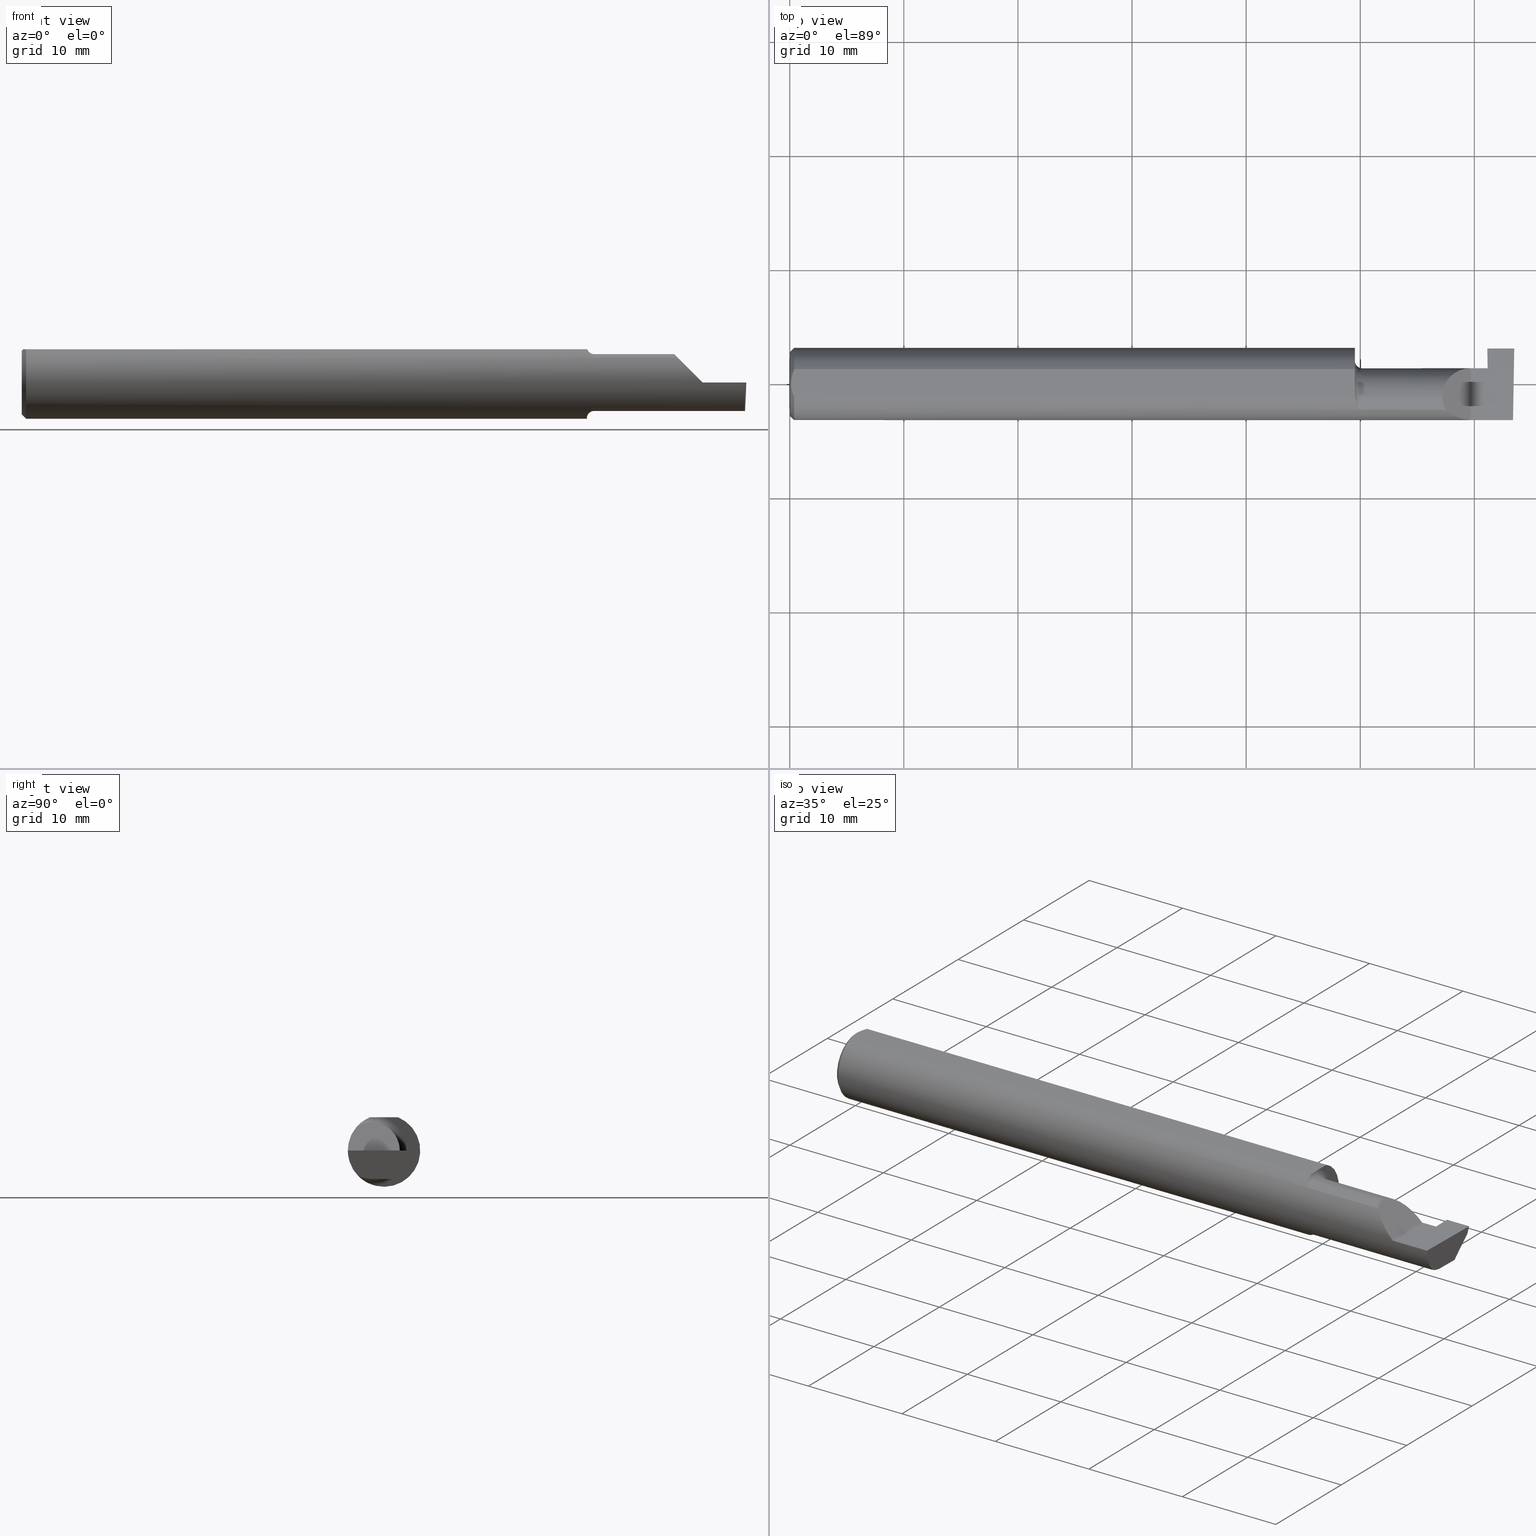
[diagram: canonical four-view strip — front | top / right | iso, engineering-drawing reading convention]
A machine part, canonical four-view strip (front | top / right | iso — engineering-drawing reading convention). The complete STEP part file that produces these views, byte-faithful:
ISO-10303-21;
HEADER;
FILE_DESCRIPTION (( 'STEP AP203' ),
    '1' );
FILE_NAME ('220842-GT092Q-8.STEP',
    '2024-07-19T21:59:43',
    ( '' ),
    ( '' ),
    'SwSTEP 2.0',
    'SolidWorks 2024',
    '' );
FILE_SCHEMA (( 'CONFIG_CONTROL_DESIGN' ));
ENDSEC;

DATA;
#1 = ORIENTED_EDGE ( 'NONE', *, *, #611, .F. ) ;
#2 = DIRECTION ( 'NONE',  ( 0.000000000000000000, 0.000000000000000000, 1.000000000000000000 ) ) ;
#3 = APPROVAL_DATE_TIME ( #681, #721 ) ;
#4 = CARTESIAN_POINT ( 'NONE',  ( 1.950400391910593223, -0.01449986171080062253, 0.1148500000000000076 ) ) ;
#5 = B_SPLINE_CURVE_WITH_KNOTS ( 'NONE', 3,
 ( #114, #357, #62, #52, #540, #594 ),
 .UNSPECIFIED., .F., .F.,
 ( 4, 2, 4 ),
 ( 0.002396733445051246140, 0.003027584450080037307, 0.003658435455108828907 ),
 .UNSPECIFIED. ) ;
#6 = VERTEX_POINT ( 'NONE', #311 ) ;
#7 = CARTESIAN_POINT ( 'NONE',  ( 1.974999999999999867, -0.04385000000000001397, 0.000000000000000000 ) ) ;
#8 = DATE_TIME_ROLE ( 'creation_date' ) ;
#9 = CARTESIAN_POINT ( 'NONE',  ( 2.407982208140546643, 0.05115612325138327310, -0.02403823089877876046 ) ) ;
#10 = AXIS2_PLACEMENT_3D ( 'NONE', #152, #399, #36 ) ;
#11 = ORIENTED_EDGE ( 'NONE', *, *, #616, .T. ) ;
#12 = DIRECTION ( 'NONE',  ( -0.03699114979479756898, 0.7066228325057372084, 0.7066228325057346549 ) ) ;
#13 = ADVANCED_FACE ( 'NONE', ( #254 ), #635, .F. ) ;
#14 = PLANE ( 'NONE',  #281 ) ;
#15 = ORIENTED_EDGE ( 'NONE', *, *, #145, .F. ) ;
#16 = CARTESIAN_POINT ( 'NONE',  ( 1.949999999999999956, -0.04385000000000001397, 0.09800000000000000377 ) ) ;
#17 = VERTEX_POINT ( 'NONE', #83 ) ;
#18 = LINE ( 'NONE', #325, #309 ) ;
#19 = VECTOR ( 'NONE', #670, 39.37007874015748143 ) ;
#20 = VECTOR ( 'NONE', #28, 39.37007874015748143 ) ;
#21 = ORIENTED_EDGE ( 'NONE', *, *, #547, .F. ) ;
#22 = ADVANCED_FACE ( 'NONE', ( #452 ), #698, .F. ) ;
#23 = CARTESIAN_POINT ( 'NONE',  ( 1.969784064659362288, -0.08911389870154562409, -0.08746251087962761406 ) ) ;
#24 = LINE ( 'NONE', #197, #308 ) ;
#25 = DIRECTION ( 'NONE',  ( -0.000000000000000000, 1.000000000000000000, 0.000000000000000000 ) ) ;
#26 = PLANE ( 'NONE',  #591 ) ;
#27 = PLANE ( 'NONE',  #30 ) ;
#28 = DIRECTION ( 'NONE',  ( 1.000000000000000000, -0.000000000000000000, -0.000000000000000000 ) ) ;
#29 = CARTESIAN_POINT ( 'NONE',  ( 1.949999999999999734, 0.0001781444078671173391, 0.1148500000000000076 ) ) ;
#30 = AXIS2_PLACEMENT_3D ( 'NONE', #387, #575, #639 ) ;
#31 = APPROVAL_PERSON_ORGANIZATION ( #55, #721, #430 ) ;
#32 = ORIENTED_EDGE ( 'NONE', *, *, #696, .T. ) ;
#33 = CARTESIAN_POINT ( 'NONE',  ( 1.949999999999999956, -0.04385000000000001397, 0.000000000000000000 ) ) ;
#34 = CC_DESIGN_PERSON_AND_ORGANIZATION_ASSIGNMENT ( #667, #612, ( #130 ) ) ;
#35 = CARTESIAN_POINT ( 'NONE',  ( 1.974999999999999867, -0.04385000000000001397, 0.000000000000000000 ) ) ;
#36 = DIRECTION ( 'NONE',  ( 0.03490478697967554916, 0.000000000000000000, -0.9993906422645267851 ) ) ;
#37 = EDGE_CURVE ( 'NONE', #282, #392, #388, .T. ) ;
#38 = EDGE_LOOP ( 'NONE', ( #473, #41, #650, #240, #113, #84, #597 ) ) ;
#39 = EDGE_CURVE ( 'NONE', #260, #57, #435, .T. ) ;
#40 = FACE_OUTER_BOUND ( 'NONE', #302, .T. ) ;
#41 = ORIENTED_EDGE ( 'NONE', *, *, #199, .T. ) ;
#42 = EDGE_CURVE ( 'NONE', #392, #760, #169, .T. ) ;
#43 = VECTOR ( 'NONE', #221, 39.37007874015748143 ) ;
#44 = CARTESIAN_POINT ( 'NONE',  ( 0.01195732443765547617, -0.04120008761723503721, 0.1148499999999999938 ) ) ;
#45 = VERTEX_POINT ( 'NONE', #734 ) ;
#46 = CARTESIAN_POINT ( 'NONE',  ( 2.411856049968029048, 0.03988613728104647982, -0.09800000000000043399 ) ) ;
#47 = CARTESIAN_POINT ( 'NONE',  ( 0.004999999999999990563, 1.454187663965904829E-17, 0.1148500000000000076 ) ) ;
#48 = ORIENTED_EDGE ( 'NONE', *, *, #42, .F. ) ;
#49 = CARTESIAN_POINT ( 'NONE',  ( 1.949999999999999956, -0.04385000000000001397, 0.000000000000000000 ) ) ;
#50 = CARTESIAN_POINT ( 'NONE',  ( 1.950756598855983626, -0.04384999999999998621, -0.1168961077196328385 ) ) ;
#51 = VERTEX_POINT ( 'NONE', #425 ) ;
#52 = CARTESIAN_POINT ( 'NONE',  ( 0.005947935873631229539, 0.01679708999422689988, 0.1148500000000000076 ) ) ;
#53 = CIRCLE ( 'NONE', #89, 0.1248500000000000026 ) ;
#54 = CONICAL_SURFACE ( 'NONE', #182, 0.1248500000000000026, 0.7853981633974480570 ) ;
#55 = PERSON_AND_ORGANIZATION ( #313, #441 ) ;
#56 = CARTESIAN_POINT ( 'NONE',  ( 2.494835769263151537, -0.1248351010429638308, -0.03262966116142157480 ) ) ;
#57 = VERTEX_POINT ( 'NONE', #368 ) ;
#58 = DIRECTION ( 'NONE',  ( -1.000000000000000000, -0.000000000000000000, -0.000000000000000000 ) ) ;
#59 = CARTESIAN_POINT ( 'NONE',  ( 2.494033449660867152, -0.09015216647662482874, -0.08637192471845768493 ) ) ;
#60 = VERTEX_POINT ( 'NONE', #610 ) ;
#61 = ADVANCED_FACE ( 'NONE', ( #174 ), #782, .T. ) ;
#62 = CARTESIAN_POINT ( 'NONE',  ( 0.009410502401328750890, 0.03310661131402438395, 0.1148499999999999938 ) ) ;
#63 = CARTESIAN_POINT ( 'NONE',  ( 2.493072779947982820, -0.1248043149033065402, -0.09996577117162359916 ) ) ;
#64 = EDGE_CURVE ( 'NONE', #760, #562, #166, .T. ) ;
#65 = ADVANCED_FACE ( 'NONE', ( #481 ), #429, .F. ) ;
#66 = VERTEX_POINT ( 'NONE', #233 ) ;
#67 = CARTESIAN_POINT ( 'NONE',  ( 2.350000000000000089, -0.2000000000000000111, 1.836970198721028825E-17 ) ) ;
#68 = TOROIDAL_SURFACE ( 'NONE', #589, 0.1230000000000000121, 0.02500000000000007425 ) ;
#69 = CARTESIAN_POINT ( 'NONE',  ( 2.411856049968029048, 0.05420972092307230206, -0.09799127047100440746 ) ) ;
#70 = APPROVAL_PERSON_ORGANIZATION ( #532, #149, #278 ) ;
#71 = EDGE_LOOP ( 'NONE', ( #581, #108 ) ) ;
#72 = EDGE_CURVE ( 'NONE', #60, #57, #118, .T. ) ;
#73 = DIRECTION ( 'NONE',  ( -1.000000000000000000, -0.000000000000000000, -0.000000000000000000 ) ) ;
#74 = EDGE_LOOP ( 'NONE', ( #274, #191, #763, #665 ) ) ;
#75 = CARTESIAN_POINT ( 'NONE',  ( 1.955064983703084902, -0.06736177101644139076, -0.1052426774175049262 ) ) ;
#76 = EDGE_CURVE ( 'NONE', #6, #45, #603, .T. ) ;
#77 = VERTEX_POINT ( 'NONE', #421 ) ;
#78 = LINE ( 'NONE', #684, #770 ) ;
#79 = CARTESIAN_POINT ( 'NONE',  ( 1.974999999999999867, -0.09015216647662482874, 0.08637192471845768493 ) ) ;
#80 = ORIENTED_EDGE ( 'NONE', *, *, #286, .F. ) ;
#81 = CARTESIAN_POINT ( 'NONE',  ( 1.960226514481664850, -0.07966992494485879150, -0.09623747760188192113 ) ) ;
#82 = DIRECTION ( 'NONE',  ( 0.000000000000000000, 0.000000000000000000, 1.000000000000000000 ) ) ;
#83 = CARTESIAN_POINT ( 'NONE',  ( 1.974999999999999867, -0.04385000000000001397, 0.09800000000000001765 ) ) ;
#84 = ORIENTED_EDGE ( 'NONE', *, *, #93, .T. ) ;
#85 = CARTESIAN_POINT ( 'NONE',  ( 2.399999999999999911, 0.1221499999999999808, -3.306546357697866753E-19 ) ) ;
#86 = DIRECTION ( 'NONE',  ( -0.03866673033866090819, 0.3253246823342272331, 0.9448114812114909444 ) ) ;
#87 = EDGE_CURVE ( 'NONE', #367, #6, #409, .T. ) ;
#88 = DIRECTION ( 'NONE',  ( 0.000000000000000000, 0.000000000000000000, 1.000000000000000000 ) ) ;
#89 = AXIS2_PLACEMENT_3D ( 'NONE', #276, #706, #334 ) ;
#90 = PRODUCT_DEFINITION ( 'UNKNOWN', '', #271, #111 ) ;
#91 = CIRCLE ( 'NONE', #608, 0.09800000000000000377 ) ;
#92 = CARTESIAN_POINT ( 'NONE',  ( 2.252000000000000668, -0.06008937020638503712, 0.09799999999999998990 ) ) ;
#93 = EDGE_CURVE ( 'NONE', #760, #298, #5, .T. ) ;
#94 = DIRECTION ( 'NONE',  ( 0.01744642479411464761, 0.9998477995484629233, -2.135106780035675284E-18 ) ) ;
#95 = ADVANCED_FACE ( 'NONE', ( #303 ), #68, .F. ) ;
#96 = MECHANICAL_CONTEXT ( 'NONE', #364, 'mechanical' ) ;
#97 = PLANE ( 'NONE',  #504 ) ;
#98 = EDGE_CURVE ( 'NONE', #619, #231, #759, .T. ) ;
#99 = ORIENTED_EDGE ( 'NONE', *, *, #584, .F. ) ;
#100 = LENGTH_MEASURE_WITH_UNIT ( LENGTH_MEASURE( 0.02539999999999999897 ), #157 );
#101 = CARTESIAN_POINT ( 'NONE',  ( 1.951326891871132618, -0.04895916665958131159, 0.1148500000000000076 ) ) ;
#102 = ORIENTED_EDGE ( 'NONE', *, *, #774, .T. ) ;
#103 = B_SPLINE_CURVE_WITH_KNOTS ( 'NONE', 3,
 ( #383, #566, #751, #510, #762, #644 ),
 .UNSPECIFIED., .F., .F.,
 ( 4, 2, 4 ),
 ( 0.009355882855462110265, 0.009420520835871136131, 0.009485158816280161997 ),
 .UNSPECIFIED. ) ;
#104 = CARTESIAN_POINT ( 'NONE',  ( 0.000000000000000000, 1.437123018799419134E-17, 0.1098500000000000032 ) ) ;
#105 = VECTOR ( 'NONE', #565, 39.37007874015748143 ) ;
#106 =( BOUNDED_CURVE ( )  B_SPLINE_CURVE ( 3, ( #220, #590, #92, #148 ),
 .UNSPECIFIED., .F., .T. ) 
 B_SPLINE_CURVE_WITH_KNOTS ( ( 4, 4 ),
 ( 5.791092865617133434, 6.283185307179586232 ),
 .UNSPECIFIED. ) 
 CURVE ( )  GEOMETRIC_REPRESENTATION_ITEM ( )  RATIONAL_B_SPLINE_CURVE ( ( 1.000000000000000000, 0.9799220177372784946, 0.9799220177372784946, 1.000000000000000000 ) ) 
 REPRESENTATION_ITEM ( '' )  );
#107 = CARTESIAN_POINT ( 'NONE',  ( 1.961053217927789527, -0.08094812012701402271, 0.09514231764808568637 ) ) ;
#108 = ORIENTED_EDGE ( 'NONE', *, *, #145, .T. ) ;
#109 = CARTESIAN_POINT ( 'NONE',  ( 2.411856049968030824, -2.355392187635195533, -0.09945980587766967140 ) ) ;
#110 = CALENDAR_DATE ( 2024, 19, 7 ) ;
#111 = DESIGN_CONTEXT ( 'detailed design', #447, 'design' ) ;
#112 = CARTESIAN_POINT ( 'NONE',  ( 1.951090261609495835, -0.02916889382056605043, 0.1148499999999999938 ) ) ;
#113 = ORIENTED_EDGE ( 'NONE', *, *, #42, .T. ) ;
#114 = CARTESIAN_POINT ( 'NONE',  ( 0.01499999999999987454, 0.04895916665957496944, 0.1148500000000000076 ) ) ;
#115 = COORDINATED_UNIVERSAL_TIME_OFFSET ( 8, 0, .BEHIND. ) ;
#116 = DIRECTION ( 'NONE',  ( 0.05230943362269021429, 0.0006086169641122232991, -0.9986307389317957695 ) ) ;
#117 = ORIENTED_EDGE ( 'NONE', *, *, #515, .T. ) ;
#118 = LINE ( 'NONE', #656, #139 ) ;
#119 = VECTOR ( 'NONE', #502, 39.37007874015748143 ) ;
#120 = CARTESIAN_POINT ( 'NONE',  ( 2.410353341463135290, 0.03970102213383044920, -0.06931214282740391641 ) ) ;
#121 = EDGE_LOOP ( 'NONE', ( #736, #150, #32, #573 ) ) ;
#122 = EDGE_CURVE ( 'NONE', #195, #384, #287, .T. ) ;
#123 = ADVANCED_FACE ( 'NONE', ( #363 ), #474, .T. ) ;
#124 = LINE ( 'NONE', #69, #140 ) ;
#125 = VERTEX_POINT ( 'NONE', #104 ) ;
#126 = CARTESIAN_POINT ( 'NONE',  ( 1.949999999999999734, 0.1541499999999999537, 0.000000000000000000 ) ) ;
#127 = PERSON_AND_ORGANIZATION ( #313, #441 ) ;
#128 = DIRECTION ( 'NONE',  ( 0.000000000000000000, 0.000000000000000000, 1.000000000000000000 ) ) ;
#129 = ORIENTED_EDGE ( 'NONE', *, *, #265, .F. ) ;
#130 = SECURITY_CLASSIFICATION ( '', '', #365 ) ;
#131 = LINE ( 'NONE', #574, #320 ) ;
#132 = ORIENTED_EDGE ( 'NONE', *, *, #579, .F. ) ;
#133 = CARTESIAN_POINT ( 'NONE',  ( 2.500000000000000000, -0.2000000000000000111, 0.000000000000000000 ) ) ;
#134 = ORIENTED_EDGE ( 'NONE', *, *, #750, .F. ) ;
#135 = DIRECTION ( 'NONE',  ( -1.000000000000000000, -0.000000000000000000, -0.000000000000000000 ) ) ;
#136 = DIRECTION ( 'NONE',  ( 0.000000000000000000, 0.000000000000000000, 1.000000000000000000 ) ) ;
#137 = ORIENTED_EDGE ( 'NONE', *, *, #342, .T. ) ;
#138 = LINE ( 'NONE', #641, #218 ) ;
#139 = VECTOR ( 'NONE', #726, 39.37007874015748854 ) ;
#140 = VECTOR ( 'NONE', #116, 39.37007874015748143 ) ;
#141 = CARTESIAN_POINT ( 'NONE',  ( 1.974999999999999867, -0.09015216647662478711, -0.08637192471845771269 ) ) ;
#142 = DIRECTION ( 'NONE',  ( 0.000000000000000000, 0.000000000000000000, -1.000000000000000000 ) ) ;
#143 = VERTEX_POINT ( 'NONE', #46 ) ;
#144 = CARTESIAN_POINT ( 'NONE',  ( 1.974999999999999867, -0.09015216647662478711, -0.08637192471845771269 ) ) ;
#145 = EDGE_CURVE ( 'NONE', #125, #766, #699, .T. ) ;
#146 = CARTESIAN_POINT ( 'NONE',  ( 2.407982208140547975, -2.355437259540762440, -0.02550493275501657456 ) ) ;
#147 = ORIENTED_EDGE ( 'NONE', *, *, #199, .F. ) ;
#148 = CARTESIAN_POINT ( 'NONE',  ( 2.252000000000000668, -0.04385000000000001397, 0.09800000000000000377 ) ) ;
#149 = APPROVAL ( #413, 'UNSPECIFIED' ) ;
#150 = ORIENTED_EDGE ( 'NONE', *, *, #470, .F. ) ;
#151 = PERSON_AND_ORGANIZATION_ROLE ( 'creator' ) ;
#152 = CARTESIAN_POINT ( 'NONE',  ( 2.412234127201017042, 0.1222413620301362747, -0.1499086240528643699 ) ) ;
#153 = VECTOR ( 'NONE', #414, 39.37007874015748143 ) ;
#154 = VECTOR ( 'NONE', #529, 39.37007874015748143 ) ;
#155 = ORIENTED_EDGE ( 'NONE', *, *, #717, .T. ) ;
#156 =( BOUNDED_CURVE ( )  B_SPLINE_CURVE ( 3, ( #366, #546, #297, #369 ),
 .UNSPECIFIED., .F., .T. ) 
 B_SPLINE_CURVE_WITH_KNOTS ( ( 4, 4 ),
 ( 4.463962699426426539, 4.711356644242685299 ),
 .UNSPECIFIED. ) 
 CURVE ( )  GEOMETRIC_REPRESENTATION_ITEM ( )  RATIONAL_B_SPLINE_CURVE ( ( 1.000000000000000000, 0.9949061863229001768, 0.9949061863229001768, 1.000000000000000000 ) ) 
 REPRESENTATION_ITEM ( '' )  );
#157 =( LENGTH_UNIT ( ) NAMED_UNIT ( * ) SI_UNIT ( $, .METRE. ) );
#158 = EDGE_CURVE ( 'NONE', #282, #555, #269, .T. ) ;
#159 = CARTESIAN_POINT ( 'NONE',  ( 0.004999999999999964542, -0.008410771716546833199, 0.1148500000000000215 ) ) ;
#160 = CARTESIAN_POINT ( 'NONE',  ( 0.000000000000000000, 0.000000000000000000, -0.1098500000000000032 ) ) ;
#161 = LINE ( 'NONE', #724, #154 ) ;
#162 = EDGE_LOOP ( 'NONE', ( #252, #411, #669 ) ) ;
#163 = CARTESIAN_POINT ( 'NONE',  ( 0.000000000000000000, 0.000000000000000000, 0.000000000000000000 ) ) ;
#164 = PERSON_AND_ORGANIZATION ( #313, #441 ) ;
#165 = FACE_OUTER_BOUND ( 'NONE', #417, .T. ) ;
#166 = CIRCLE ( 'NONE', #415, 0.1248500000000000026 ) ;
#167 = EDGE_LOOP ( 'NONE', ( #530, #683, #588 ) ) ;
#168 = AXIS2_PLACEMENT_3D ( 'NONE', #163, #477, #412 ) ;
#169 = LINE ( 'NONE', #544, #257 ) ;
#170 = VECTOR ( 'NONE', #601, 39.37007874015748143 ) ;
#171 = B_SPLINE_CURVE_WITH_KNOTS ( 'NONE', 3,
 ( #50, #489, #482, #789 ),
 .UNSPECIFIED., .F., .F.,
 ( 4, 4 ),
 ( 0.001640801893433578747, 0.002088276671954489034 ),
 .UNSPECIFIED. ) ;
#172 = CARTESIAN_POINT ( 'NONE',  ( 1.949999999999999734, 0.04895916665957496944, 0.1148500000000000076 ) ) ;
#173 = EDGE_LOOP ( 'NONE', ( #1, #539, #179, #433, #437, #219, #361 ) ) ;
#174 = FACE_OUTER_BOUND ( 'NONE', #74, .T. ) ;
#175 = VERTEX_POINT ( 'NONE', #211 ) ;
#176 = CARTESIAN_POINT ( 'NONE',  ( 2.190999999999999837, -0.09015216647662482874, 0.08637192471845768493 ) ) ;
#177 = EDGE_CURVE ( 'NONE', #662, #508, #24, .T. ) ;
#178 = CARTESIAN_POINT ( 'NONE',  ( 1.974999999999999867, -0.04385000000000000009, -0.1230000000000000121 ) ) ;
#179 = ORIENTED_EDGE ( 'NONE', *, *, #717, .F. ) ;
#180 = ADVANCED_FACE ( 'NONE', ( #448 ), #375, .F. ) ;
#181 = CARTESIAN_POINT ( 'NONE',  ( 2.252000000000000668, -0.04385000000000001397, 0.09800000000000000377 ) ) ;
#182 = AXIS2_PLACEMENT_3D ( 'NONE', #393, #467, #653 ) ;
#183 = DIRECTION ( 'NONE',  ( 0.02618093032612054533, 0.000000000000000000, 0.9996572206948034500 ) ) ;
#184 = EDGE_CURVE ( 'NONE', #766, #125, #345, .T. ) ;
#185 = ORIENTED_EDGE ( 'NONE', *, *, #445, .F. ) ;
#186 = CARTESIAN_POINT ( 'NONE',  ( 0.000000000000000000, 0.000000000000000000, 0.000000000000000000 ) ) ;
#187 = APPROVAL_DATE_TIME ( #784, #498 ) ;
#188 = FACE_OUTER_BOUND ( 'NONE', #38, .T. ) ;
#189 = ORIENTED_EDGE ( 'NONE', *, *, #431, .T. ) ;
#190 = CARTESIAN_POINT ( 'NONE',  ( 2.408184773821555158, 0.05414999999999995511, 5.622061142621132155E-18 ) ) ;
#191 = ORIENTED_EDGE ( 'NONE', *, *, #632, .T. ) ;
#192 = CONICAL_SURFACE ( 'NONE', #396, 0.1248500000000000026, 0.7853981633974480570 ) ;
#193 = APPROVAL_PERSON_ORGANIZATION ( #495, #498, #788 ) ;
#194 = CARTESIAN_POINT ( 'NONE',  ( 2.413418903665495385, 0.05424136207626861078, -0.1499086997478103755 ) ) ;
#195 = VERTEX_POINT ( 'NONE', #79 ) ;
#196 = DIRECTION ( 'NONE',  ( 0.9991632577875569909, -2.492636860404075832E-05, 0.04089967806758666724 ) ) ;
#197 = CARTESIAN_POINT ( 'NONE',  ( 2.412639385688541083, -0.2015220966010469739, 1.069858966880746915E-17 ) ) ;
#198 = ORIENTED_EDGE ( 'NONE', *, *, #471, .F. ) ;
#199 = EDGE_CURVE ( 'NONE', #290, #77, #103, .T. ) ;
#200 = CARTESIAN_POINT ( 'NONE',  ( 2.411853376795601189, -0.04385000000000004172, -0.09799999999999998990 ) ) ;
#201 = PLANE ( 'NONE',  #206 ) ;
#202 = DIRECTION ( 'NONE',  ( 1.000000000000000000, 0.000000000000000000, 0.000000000000000000 ) ) ;
#203 = ADVANCED_FACE ( 'NONE', ( #330 ), #272, .T. ) ;
#204 = EDGE_CURVE ( 'NONE', #395, #662, #633, .T. ) ;
#205 = CARTESIAN_POINT ( 'NONE',  ( 2.407000000000000028, 0.1221499999999999808, -3.306546357697866753E-19 ) ) ;
#206 = AXIS2_PLACEMENT_3D ( 'NONE', #126, #492, #451 ) ;
#207 = AXIS2_PLACEMENT_3D ( 'NONE', #754, #561, #455 ) ;
#208 = DIRECTION ( 'NONE',  ( -0.7071067811865459074, 0.000000000000000000, 0.7071067811865492381 ) ) ;
#209 = ORIENTED_EDGE ( 'NONE', *, *, #572, .T. ) ;
#210 = CARTESIAN_POINT ( 'NONE',  ( 2.407982208140547975, -2.355437259540762440, -0.02550493275501657456 ) ) ;
#211 = CARTESIAN_POINT ( 'NONE',  ( 2.500000000000000444, 0.1221499999999999808, 1.947508823608312588E-17 ) ) ;
#212 = APPROVAL_DATE_TIME ( #764, #149 ) ;
#213 = PLANE ( 'NONE',  #466 ) ;
#214 = ORIENTED_EDGE ( 'NONE', *, *, #373, .F. ) ;
#215 = ADVANCED_FACE ( 'NONE', ( #705 ), #201, .T. ) ;
#216 = LINE ( 'NONE', #582, #468 ) ;
#217 = CARTESIAN_POINT ( 'NONE',  ( 1.951326891871132618, -0.04895916665958131159, 0.1148500000000000076 ) ) ;
#218 = VECTOR ( 'NONE', #312, 39.37007874015748854 ) ;
#219 = ORIENTED_EDGE ( 'NONE', *, *, #76, .F. ) ;
#220 = CARTESIAN_POINT ( 'NONE',  ( 2.263628075281542529, -0.09015216647662421812, 0.08637192471845822617 ) ) ;
#221 = DIRECTION ( 'NONE',  ( 1.000000000000000000, 0.000000000000000000, 0.000000000000000000 ) ) ;
#222 = ORIENTED_EDGE ( 'NONE', *, *, #547, .T. ) ;
#223 = DIRECTION ( 'NONE',  ( 0.9986309243930279189, -3.188005489064877512E-05, 0.05230942390801807118 ) ) ;
#224 =( NAMED_UNIT ( * ) PLANE_ANGLE_UNIT ( ) SI_UNIT ( $, .RADIAN. ) );
#225 = DIRECTION ( 'NONE',  ( 0.000000000000000000, -0.7071067811865487940, -0.7071067811865462405 ) ) ;
#226 = ORIENTED_EDGE ( 'NONE', *, *, #319, .F. ) ;
#227 = DIRECTION ( 'NONE',  ( -1.000000000000000000, -0.000000000000000000, -0.000000000000000000 ) ) ;
#228 = ADVANCED_FACE ( 'NONE', ( #507 ), #326, .F. ) ;
#229 = CARTESIAN_POINT ( 'NONE',  ( 0.009415874254822409126, -0.03313958207962818675, 0.1148500000000000076 ) ) ;
#230 = CIRCLE ( 'NONE', #685, 0.1248500000000000026 ) ;
#231 = VERTEX_POINT ( 'NONE', #141 ) ;
#232 = VECTOR ( 'NONE', #283, 39.37007874015748854 ) ;
#233 = CARTESIAN_POINT ( 'NONE',  ( 2.407982208140546643, 0.05115612325138327310, -0.02403823089877876046 ) ) ;
#234 = ORIENTED_EDGE ( 'NONE', *, *, #616, .F. ) ;
#235 = EDGE_CURVE ( 'NONE', #449, #323, #571, .T. ) ;
#236 = DIRECTION ( 'NONE',  ( 0.000000000000000000, 0.000000000000000000, 1.000000000000000000 ) ) ;
#237 = CARTESIAN_POINT ( 'NONE',  ( 2.407000000000000028, 0.05414999123725527941, -4.144270477499288293E-05 ) ) ;
#238 = ADVANCED_FACE ( 'NONE', ( #434 ), #27, .F. ) ;
#239 = PRODUCT ( '220842-GT092Q-8', '220842-GT092Q-8', '', ( #96 ) ) ;
#240 = ORIENTED_EDGE ( 'NONE', *, *, #37, .T. ) ;
#241 = DIRECTION ( 'NONE',  ( -1.000000000000000000, -0.000000000000000000, -0.000000000000000000 ) ) ;
#242 = EDGE_CURVE ( 'NONE', #555, #392, #230, .T. ) ;
#243 = PERSON_AND_ORGANIZATION_ROLE ( 'design_supplier' ) ;
#244 = LINE ( 'NONE', #537, #170 ) ;
#245 = EDGE_LOOP ( 'NONE', ( #777, #335, #576, #703, #404, #378, #528 ) ) ;
#246 = DIRECTION ( 'NONE',  ( 0.000000000000000000, 0.000000000000000000, 1.000000000000000000 ) ) ;
#247 = AXIS2_PLACEMENT_3D ( 'NONE', #730, #353, #236 ) ;
#248 = LOCAL_TIME ( 14, 59, 43.00000000000000000, #485 ) ;
#249 = APPROVAL_STATUS ( 'not_yet_approved' ) ;
#250 = B_SPLINE_CURVE_WITH_KNOTS ( 'NONE', 3,
 ( #217, #649, #475, #469, #107, #596, #710, #289, #478, #403 ),
 .UNSPECIFIED., .F., .F.,
 ( 4, 2, 2, 2, 4 ),
 ( 5.065792501964224469E-07, 0.0007388407002080941369, 0.001108007760687042265, 0.001292591290926511016, 0.001477174821165979550 ),
 .UNSPECIFIED. ) ;
#251 = CARTESIAN_POINT ( 'NONE',  ( 1.951365755776839350, -0.04385000000000001397, 0.1148500000000000076 ) ) ;
#252 = ORIENTED_EDGE ( 'NONE', *, *, #584, .T. ) ;
#253 = CARTESIAN_POINT ( 'NONE',  ( 1.950756598855983626, -0.04384999999999998621, -0.1168961077196328385 ) ) ;
#254 = FACE_OUTER_BOUND ( 'NONE', #162, .T. ) ;
#255 = CARTESIAN_POINT ( 'NONE',  ( 2.399999999999999911, 0.1138861372810479888, -0.02400000000000000050 ) ) ;
#256 = ORIENTED_EDGE ( 'NONE', *, *, #731, .F. ) ;
#257 = VECTOR ( 'NONE', #241, 39.37007874015748143 ) ;
#258 = DIRECTION ( 'NONE',  ( 1.000000000000000000, -0.000000000000000000, -0.000000000000000000 ) ) ;
#259 = CARTESIAN_POINT ( 'NONE',  ( 2.406989534187754298, 0.1222380546923502870, 0.0002557293953541246593 ) ) ;
#260 = VERTEX_POINT ( 'NONE', #680 ) ;
#261 = EDGE_CURVE ( 'NONE', #766, #562, #456, .T. ) ;
#262 = CARTESIAN_POINT ( 'NONE',  ( 1.974999999999999867, -0.04385000000000000009, -0.09800000000000001765 ) ) ;
#263 = DIRECTION ( 'NONE',  ( -1.000000000000000000, -0.000000000000000000, -0.000000000000000000 ) ) ;
#264 = CARTESIAN_POINT ( 'NONE',  ( 1.974999999999999867, -0.04385000000000001397, 0.000000000000000000 ) ) ;
#265 = EDGE_CURVE ( 'NONE', #66, #323, #391, .T. ) ;
#266 = LINE ( 'NONE', #85, #20 ) ;
#267 = CARTESIAN_POINT ( 'NONE',  ( 1.949999999999999734, 0.000000000000000000, 0.000000000000000000 ) ) ;
#268 = ORIENTED_EDGE ( 'NONE', *, *, #286, .T. ) ;
#269 = CIRCLE ( 'NONE', #720, 0.1230000000000000121 ) ;
#270 = FACE_OUTER_BOUND ( 'NONE', #173, .T. ) ;
#271 = PRODUCT_DEFINITION_FORMATION_WITH_SPECIFIED_SOURCE ( 'ANY', '', #239, .NOT_KNOWN. ) ;
#272 = CYLINDRICAL_SURFACE ( 'NONE', #554, 0.09800000000000000377 ) ;
#273 = DIRECTION ( 'NONE',  ( -1.000000000000000000, -0.000000000000000000, -0.000000000000000000 ) ) ;
#274 = ORIENTED_EDGE ( 'NONE', *, *, #753, .T. ) ;
#275 =( CONVERSION_BASED_UNIT ( 'INCH', #100 ) LENGTH_UNIT ( ) NAMED_UNIT ( #615 ) );
#276 = CARTESIAN_POINT ( 'NONE',  ( 0.01499999999999999944, 0.000000000000000000, 0.000000000000000000 ) ) ;
#277 = ORIENTED_EDGE ( 'NONE', *, *, #661, .T. ) ;
#278 = APPROVAL_ROLE ( '' ) ;
#279 = DIRECTION ( 'NONE',  ( -0.000000000000000000, 2.817424862263050982E-16, 1.000000000000000000 ) ) ;
#280 = AXIS2_PLACEMENT_3D ( 'NONE', #511, #202, #142 ) ;
#281 = AXIS2_PLACEMENT_3D ( 'NONE', #496, #732, #183 ) ;
#282 = VERTEX_POINT ( 'NONE', #29 ) ;
#283 = DIRECTION ( 'NONE',  ( -0.03084274406794521375, -0.7067703747110382073, -0.7067703747110356538 ) ) ;
#284 = CARTESIAN_POINT ( 'NONE',  ( 2.190999999999999837, -0.09015216647662482874, -0.08637192471845768493 ) ) ;
#285 = EDGE_LOOP ( 'NONE', ( #614, #424, #625, #80, #534 ) ) ;
#286 = EDGE_CURVE ( 'NONE', #143, #400, #307, .T. ) ;
#287 = LINE ( 'NONE', #176, #19 ) ;
#288 =( NAMED_UNIT ( * ) SI_UNIT ( $, .STERADIAN. ) SOLID_ANGLE_UNIT ( ) );
#289 = CARTESIAN_POINT ( 'NONE',  ( 1.970195245915189242, -0.08928014009842913379, 0.08728826463235836441 ) ) ;
#290 = VERTEX_POINT ( 'NONE', #101 ) ;
#291 = CC_DESIGN_PERSON_AND_ORGANIZATION_ASSIGNMENT ( #164, #521, ( #239 ) ) ;
#292 = DIRECTION ( 'NONE',  ( 1.000000000000000000, 0.000000000000000000, 0.000000000000000000 ) ) ;
#293 = CARTESIAN_POINT ( 'NONE',  ( 1.951365755776838906, -0.03650543323727820783, 0.1148500000000000215 ) ) ;
#294 = ORIENTED_EDGE ( 'NONE', *, *, #177, .F. ) ;
#295 = VECTOR ( 'NONE', #381, 39.37007874015748854 ) ;
#296 = DIRECTION ( 'NONE',  ( -1.000000000000000000, -0.000000000000000000, -0.000000000000000000 ) ) ;
#297 = CARTESIAN_POINT ( 'NONE',  ( 2.407331655309489893, 0.05414656493488110428, -0.008143655253979588740 ) ) ;
#298 = VERTEX_POINT ( 'NONE', #776 ) ;
#299 = ADVANCED_FACE ( 'NONE', ( #165 ), #192, .T. ) ;
#300 = DIRECTION ( 'NONE',  ( -1.000000000000000000, -0.000000000000000000, -0.000000000000000000 ) ) ;
#301 = CARTESIAN_POINT ( 'NONE',  ( 1.974999999999999867, -0.04385000000000001397, 0.1230000000000000121 ) ) ;
#302 = EDGE_LOOP ( 'NONE', ( #464, #457, #420, #444 ) ) ;
#303 = FACE_OUTER_BOUND ( 'NONE', #719, .T. ) ;
#304 = COORDINATED_UNIVERSAL_TIME_OFFSET ( 8, 0, .BEHIND. ) ;
#305 = CARTESIAN_POINT ( 'NONE',  ( 2.411853376795601189, -0.04385000000000004172, -0.09799999999999998990 ) ) ;
#306 = ORIENTED_EDGE ( 'NONE', *, *, #568, .F. ) ;
#307 = LINE ( 'NONE', #556, #440 ) ;
#308 = VECTOR ( 'NONE', #550, 39.37007874015748143 ) ;
#309 = VECTOR ( 'NONE', #135, 39.37007874015748143 ) ;
#310 = DIRECTION ( 'NONE',  ( 0.000000000000000000, -1.000000000000000000, 0.000000000000000000 ) ) ;
#311 = CARTESIAN_POINT ( 'NONE',  ( 2.350000000000000089, 0.05414999999999988572, 1.836970198721028825E-17 ) ) ;
#312 = DIRECTION ( 'NONE',  ( 3.192376091677256279E-05, 0.9999999994904366085, -2.817425088418964388E-16 ) ) ;
#313 = PERSON ( 'UNSPECIFIED', 'UNSPECIFIED', 'UNSPECIFIED', ('UNSPECIFIED'), ('UNSPECIFIED'), ('UNSPECIFIED') ) ;
#314 = EDGE_LOOP ( 'NONE', ( #185, #370, #340, #134, #480 ) ) ;
#315 = CC_DESIGN_PERSON_AND_ORGANIZATION_ASSIGNMENT ( #127, #243, ( #271 ) ) ;
#316 = CARTESIAN_POINT ( 'NONE',  ( 1.965875432832430825, -0.08647060418110448510, -0.09007670266896471156 ) ) ;
#317 = EDGE_CURVE ( 'NONE', #562, #752, #53, .T. ) ;
#318 = EDGE_LOOP ( 'NONE', ( #773, #209, #497, #560, #781, #476, #700, #214, #427, #483, #48, #501, #558, #99 ) ) ;
#319 = EDGE_CURVE ( 'NONE', #298, #752, #460, .T. ) ;
#320 = VECTOR ( 'NONE', #701, 39.37007874015748143 ) ;
#321 = DIRECTION ( 'NONE',  ( -0.000000000000000000, 1.000000000000000000, -0.000000000000000000 ) ) ;
#322 = CARTESIAN_POINT ( 'NONE',  ( 1.949999999999999734, -0.04385000000000001397, 0.000000000000000000 ) ) ;
#323 = VERTEX_POINT ( 'NONE', #651 ) ;
#324 = ADVANCED_FACE ( 'NONE', ( #587 ), #97, .F. ) ;
#325 = CARTESIAN_POINT ( 'NONE',  ( 3.749399456654637998E-32, -0.1248500000000000026, 3.061616997868380676E-16 ) ) ;
#326 = PLANE ( 'NONE',  #360 ) ;
#327 = DIRECTION ( 'NONE',  ( -1.000000000000000000, -0.000000000000000000, -0.000000000000000000 ) ) ;
#328 = ORIENTED_EDGE ( 'NONE', *, *, #606, .T. ) ;
#329 = LINE ( 'NONE', #450, #398 ) ;
#330 = FACE_OUTER_BOUND ( 'NONE', #693, .T. ) ;
#331 = EDGE_LOOP ( 'NONE', ( #155, #102, #256, #352 ) ) ;
#332 = VECTOR ( 'NONE', #620, 39.37007874015748143 ) ;
#333 = CIRCLE ( 'NONE', #626, 0.09800000000000000377 ) ;
#334 = DIRECTION ( 'NONE',  ( 0.000000000000000000, 0.000000000000000000, 1.000000000000000000 ) ) ;
#335 = ORIENTED_EDGE ( 'NONE', *, *, #72, .F. ) ;
#336 = CARTESIAN_POINT ( 'NONE',  ( 0.005932194444709711773, -0.01671525318617311101, 0.1148500000000000215 ) ) ;
#337 = LINE ( 'NONE', #767, #232 ) ;
#338 = DIRECTION ( 'NONE',  ( 0.000000000000000000, 0.000000000000000000, -1.000000000000000000 ) ) ;
#339 = EDGE_CURVE ( 'NONE', #260, #231, #654, .T. ) ;
#340 = ORIENTED_EDGE ( 'NONE', *, *, #515, .F. ) ;
#341 = DIRECTION ( 'NONE',  ( -0.03042981077198583101, -0.3254173858243484818, -0.9450807116958995779 ) ) ;
#342 = EDGE_CURVE ( 'NONE', #290, #195, #250, .T. ) ;
#343 = DIRECTION ( 'NONE',  ( 1.000000000000000000, 0.000000000000000000, 0.000000000000000000 ) ) ;
#344 = ADVANCED_FACE ( 'NONE', ( #40 ), #213, .F. ) ;
#345 = CIRCLE ( 'NONE', #453, 0.1098500000000000032 ) ;
#346 = CC_DESIGN_SECURITY_CLASSIFICATION ( #130, ( #271 ) ) ;
#347 = ORIENTED_EDGE ( 'NONE', *, *, #98, .F. ) ;
#348 = CARTESIAN_POINT ( 'NONE',  ( 1.949999999999999956, 0.05414999999999998981, 6.735557395310438818E-17 ) ) ;
#349 = COORDINATED_UNIVERSAL_TIME_OFFSET ( 8, 0, .BEHIND. ) ;
#350 = PRODUCT_RELATED_PRODUCT_CATEGORY ( 'detail', '', ( #239 ) ) ;
#351 = CARTESIAN_POINT ( 'NONE',  ( 2.407982208140546643, 0.1138861372810479888, -0.02400000000000000397 ) ) ;
#352 = ORIENTED_EDGE ( 'NONE', *, *, #204, .T. ) ;
#353 = DIRECTION ( 'NONE',  ( -1.000000000000000000, -0.000000000000000000, -0.000000000000000000 ) ) ;
#354 = PRODUCT_DEFINITION_SHAPE ( 'NONE', 'NONE',  #90 ) ;
#355 = CARTESIAN_POINT ( 'NONE',  ( 2.407000000000000028, -0.04385000000000001397, 0.000000000000000000 ) ) ;
#356 = ORIENTED_EDGE ( 'NONE', *, *, #548, .T. ) ;
#357 = CARTESIAN_POINT ( 'NONE',  ( 0.01193974418109658951, 0.04115525648180412555, 0.1148500000000000215 ) ) ;
#358 = CALENDAR_DATE ( 2024, 19, 7 ) ;
#359 = LINE ( 'NONE', #749, #105 ) ;
#360 = AXIS2_PLACEMENT_3D ( 'NONE', #67, #697, #208 ) ;
#361 = ORIENTED_EDGE ( 'NONE', *, *, #696, .F. ) ;
#362 = AXIS2_PLACEMENT_3D ( 'NONE', #33, #273, #522 ) ;
#363 = FACE_OUTER_BOUND ( 'NONE', #318, .T. ) ;
#364 = APPLICATION_CONTEXT ( 'configuration controlled 3d designs of mechanical parts and assemblies' ) ;
#365 = SECURITY_CLASSIFICATION_LEVEL ( 'unclassified' ) ;
#366 = CARTESIAN_POINT ( 'NONE',  ( 2.407982208140546643, 0.05115612325138327310, -0.02403823089877876046 ) ) ;
#367 = VERTEX_POINT ( 'NONE', #772 ) ;
#368 = CARTESIAN_POINT ( 'NONE',  ( 2.494536841675280670, -0.04385000000000003478, -0.09799999999999998990 ) ) ;
#369 = CARTESIAN_POINT ( 'NONE',  ( 2.407000000000000028, 0.05414999123725527941, -4.144270477499288293E-05 ) ) ;
#370 = ORIENTED_EDGE ( 'NONE', *, *, #235, .F. ) ;
#371 = CARTESIAN_POINT ( 'NONE',  ( 2.407982208140546643, 0.05416464901750552008, -0.02403639734835131408 ) ) ;
#372 = CARTESIAN_POINT ( 'NONE',  ( 1.949999999999999734, -0.02715330672748003313, -0.1218614805168695830 ) ) ;
#373 = EDGE_CURVE ( 'NONE', #752, #290, #718, .T. ) ;
#374 = ORIENTED_EDGE ( 'NONE', *, *, #638, .F. ) ;
#375 = TOROIDAL_SURFACE ( 'NONE', #646, 0.1230000000000000121, 0.02500000000000007425 ) ;
#376 = CARTESIAN_POINT ( 'NONE',  ( 1.974999999999999867, -0.04385000000000001397, 0.000000000000000000 ) ) ;
#377 = CC_DESIGN_DATE_AND_TIME_ASSIGNMENT ( #604, #8, ( #90 ) ) ;
#378 = ORIENTED_EDGE ( 'NONE', *, *, #465, .F. ) ;
#379 = CARTESIAN_POINT ( 'NONE',  ( 2.495690077103728921, -0.1248499999950965084, 1.733801157256528502E-17 ) ) ;
#380 = ORIENTED_EDGE ( 'NONE', *, *, #64, .T. ) ;
#381 = DIRECTION ( 'NONE',  ( -0.03489418134011375294, -0.0006090802009084590480, 0.9993908270190957621 ) ) ;
#382 = EDGE_CURVE ( 'NONE', #57, #733, #161, .T. ) ;
#383 = CARTESIAN_POINT ( 'NONE',  ( 1.951326891871132618, -0.04895916665958131159, 0.1148500000000000076 ) ) ;
#384 = VERTEX_POINT ( 'NONE', #472 ) ;
#385 = CC_DESIGN_APPROVAL ( #498, ( #130 ) ) ;
#386 = CARTESIAN_POINT ( 'NONE',  ( 1.953850144156349389, -0.06295012366509163126, -0.1079450122012244745 ) ) ;
#387 = CARTESIAN_POINT ( 'NONE',  ( 2.399999999999999911, 0.1221499999999999808, -3.306546357697866753E-19 ) ) ;
#388 = LINE ( 'NONE', #640, #672 ) ;
#389 = VERTEX_POINT ( 'NONE', #408 ) ;
#390 = CARTESIAN_POINT ( 'NONE',  ( 1.958278800716857893, -0.07573621487658345475, -0.09938639293507163519 ) ) ;
#391 = LINE ( 'NONE', #146, #605 ) ;
#392 = VERTEX_POINT ( 'NONE', #172 ) ;
#393 = CARTESIAN_POINT ( 'NONE',  ( 0.01499999999999999944, 0.000000000000000000, 0.000000000000000000 ) ) ;
#394 = DIRECTION ( 'NONE',  ( -1.000000000000000000, -0.000000000000000000, -0.000000000000000000 ) ) ;
#395 = VERTEX_POINT ( 'NONE', #351 ) ;
#396 = AXIS2_PLACEMENT_3D ( 'NONE', #714, #343, #338 ) ;
#397 = DIRECTION ( 'NONE',  ( 1.000000000000000000, 0.000000000000000000, 0.000000000000000000 ) ) ;
#398 = VECTOR ( 'NONE', #761, 39.37007874015748143 ) ;
#399 = DIRECTION ( 'NONE',  ( 0.9992391710281357531, 0.01740988840156782597, 0.03489949668475364475 ) ) ;
#400 = VERTEX_POINT ( 'NONE', #533 ) ;
#401 = APPLICATION_PROTOCOL_DEFINITION ( 'international standard', 'config_control_design', 1994, #364 ) ;
#402 = EDGE_CURVE ( 'NONE', #652, #175, #664, .T. ) ;
#403 = CARTESIAN_POINT ( 'NONE',  ( 1.974999999999999867, -0.09015216647662482874, 0.08637192471845768493 ) ) ;
#404 = ORIENTED_EDGE ( 'NONE', *, *, #402, .F. ) ;
#405 = ADVANCED_FACE ( 'NONE', ( #419 ), #580, .T. ) ;
#406 = ADVANCED_FACE ( 'NONE', ( #583 ), #765, .F. ) ;
#407 = FACE_OUTER_BOUND ( 'NONE', #741, .T. ) ;
#408 = CARTESIAN_POINT ( 'NONE',  ( 2.495688583004118666, -0.1248499869621840785, -5.705736120969982501E-05 ) ) ;
#409 =( BOUNDED_CURVE ( )  B_SPLINE_CURVE ( 3, ( #181, #666, #716, #617 ),
 .UNSPECIFIED., .F., .T. ) 
 B_SPLINE_CURVE_WITH_KNOTS ( ( 4, 4 ),
 ( 0.000000000000000000, 1.570796326794896558 ),
 .UNSPECIFIED. ) 
 CURVE ( )  GEOMETRIC_REPRESENTATION_ITEM ( )  RATIONAL_B_SPLINE_CURVE ( ( 1.000000000000000000, 0.8047378541243649375, 0.8047378541243649375, 1.000000000000000000 ) ) 
 REPRESENTATION_ITEM ( '' )  );
#410 = MANIFOLD_SOLID_BREP ( 'Front Angle', #708 ) ;
#411 = ORIENTED_EDGE ( 'NONE', *, *, #568, .T. ) ;
#412 = DIRECTION ( 'NONE',  ( 0.000000000000000000, 0.000000000000000000, 1.000000000000000000 ) ) ;
#413 = APPROVAL_STATUS ( 'not_yet_approved' ) ;
#414 = DIRECTION ( 'NONE',  ( -1.000000000000000000, -0.000000000000000000, -0.000000000000000000 ) ) ;
#415 = AXIS2_PLACEMENT_3D ( 'NONE', #663, #300, #2 ) ;
#416 = AXIS2_PLACEMENT_3D ( 'NONE', #618, #426, #622 ) ;
#417 = EDGE_LOOP ( 'NONE', ( #15, #689, #487, #380, #786 ) ) ;
#418 = CARTESIAN_POINT ( 'NONE',  ( 2.494536841675280670, -0.04385000000000003478, -0.09799999999999998990 ) ) ;
#419 = FACE_OUTER_BOUND ( 'NONE', #524, .T. ) ;
#420 = ORIENTED_EDGE ( 'NONE', *, *, #382, .T. ) ;
#421 = CARTESIAN_POINT ( 'NONE',  ( 1.951365755776839350, -0.04385000000000001397, 0.1148500000000000076 ) ) ;
#422 = DATE_AND_TIME ( #557, #577 ) ;
#423 = DIRECTION ( 'NONE',  ( -0.000000000000000000, 1.000000000000000000, 1.224646799147353207E-16 ) ) ;
#424 = ORIENTED_EDGE ( 'NONE', *, *, #265, .T. ) ;
#425 = CARTESIAN_POINT ( 'NONE',  ( 2.499227245409318954, 0.1138861372810479888, -0.02400000000000000050 ) ) ;
#426 = DIRECTION ( 'NONE',  ( 0.000000000000000000, -0.000000000000000000, 1.000000000000000000 ) ) ;
#427 = ORIENTED_EDGE ( 'NONE', *, *, #317, .F. ) ;
#428 = VECTOR ( 'NONE', #258, 39.37007874015748143 ) ;
#429 = PLANE ( 'NONE',  #624 ) ;
#430 = APPROVAL_ROLE ( '' ) ;
#431 = EDGE_CURVE ( 'NONE', #77, #17, #659, .T. ) ;
#432 = CARTESIAN_POINT ( 'NONE',  ( 2.287163018370355072, -0.1127002472623169216, 0.06283698162964553025 ) ) ;
#433 = ORIENTED_EDGE ( 'NONE', *, *, #177, .T. ) ;
#434 = FACE_OUTER_BOUND ( 'NONE', #331, .T. ) ;
#435 =( BOUNDED_CURVE ( )  B_SPLINE_CURVE ( 3, ( #778, #677, #484, #418 ),
 .UNSPECIFIED., .F., .T. ) 
 B_SPLINE_CURVE_WITH_KNOTS ( ( 4, 4 ),
 ( 0.09562308769844128642, 0.5877155292609013149 ),
 .UNSPECIFIED. ) 
 CURVE ( )  GEOMETRIC_REPRESENTATION_ITEM ( )  RATIONAL_B_SPLINE_CURVE ( ( 1.000000000000000000, 0.9799220177372778284, 0.9799220177372778284, 1.000000000000000000 ) ) 
 REPRESENTATION_ITEM ( '' )  );
#436 = DIRECTION ( 'NONE',  ( -1.000000000000000000, -0.000000000000000000, -0.000000000000000000 ) ) ;
#437 = ORIENTED_EDGE ( 'NONE', *, *, #750, .T. ) ;
#438 = CC_DESIGN_PERSON_AND_ORGANIZATION_ASSIGNMENT ( #738, #599, ( #271 ) ) ;
#439 = CARTESIAN_POINT ( 'NONE',  ( 1.949999999999999956, -0.007185469346090035854, 0.1148500000000000076 ) ) ;
#440 = VECTOR ( 'NONE', #12, 39.37007874015748854 ) ;
#441 = ORGANIZATION ( 'UNSPECIFIED', 'UNSPECIFIED', '' ) ;
#442 = ADVANCED_FACE ( 'NONE', ( #188 ), #739, .T. ) ;
#443 = CARTESIAN_POINT ( 'NONE',  ( 1.972259638933030690, -0.09015216647662500915, -0.08637192471845750452 ) ) ;
#444 = ORIENTED_EDGE ( 'NONE', *, *, #690, .T. ) ;
#445 = EDGE_CURVE ( 'NONE', #323, #400, #124, .T. ) ;
#446 = CARTESIAN_POINT ( 'NONE',  ( 2.495688583004118666, -0.1248499869621840785, -5.705736120969982501E-05 ) ) ;
#447 = APPLICATION_CONTEXT ( 'configuration controlled 3d designs of mechanical parts and assemblies' ) ;
#448 = FACE_OUTER_BOUND ( 'NONE', #655, .T. ) ;
#449 = VERTEX_POINT ( 'NONE', #237 ) ;
#450 = CARTESIAN_POINT ( 'NONE',  ( 2.500000000000000000, 0.03988613728104772188, -0.09800000000000000377 ) ) ;
#451 = DIRECTION ( 'NONE',  ( 0.000000000000000000, 0.000000000000000000, -1.000000000000000000 ) ) ;
#452 = FACE_OUTER_BOUND ( 'NONE', #71, .T. ) ;
#453 = AXIS2_PLACEMENT_3D ( 'NONE', #186, #394, #136 ) ;
#454 = CIRCLE ( 'NONE', #709, 0.02500000000000007425 ) ;
#455 = DIRECTION ( 'NONE',  ( 0.000000000000000000, 0.0006094513490877561009, -0.9999998142845092364 ) ) ;
#456 = LINE ( 'NONE', #702, #332 ) ;
#457 = ORIENTED_EDGE ( 'NONE', *, *, #72, .T. ) ;
#458 = APPLICATION_PROTOCOL_DEFINITION ( 'international standard', 'config_control_design', 1994, #447 ) ;
#459 = DIRECTION ( 'NONE',  ( -1.000000000000000000, -0.000000000000000000, -0.000000000000000000 ) ) ;
#460 = B_SPLINE_CURVE_WITH_KNOTS ( 'NONE', 3,
 ( #47, #159, #336, #229, #44, #768 ),
 .UNSPECIFIED., .F., .F.,
 ( 4, 2, 4 ),
 ( 0.003658435455108828907, 0.004289327297787135992, 0.004920219140465443078 ),
 .UNSPECIFIED. ) ;
#461 = PERSON_AND_ORGANIZATION ( #313, #441 ) ;
#462 = ADVANCED_BREP_SHAPE_REPRESENTATION ( '220842-GT092Q-8', ( #410, #516 ), #735 ) ;
#463 = CARTESIAN_POINT ( 'NONE',  ( 0.000000000000000000, -0.04895916665957456698, 0.1148500000000000076 ) ) ;
#464 = ORIENTED_EDGE ( 'NONE', *, *, #638, .T. ) ;
#465 = EDGE_CURVE ( 'NONE', #389, #652, #500, .T. ) ;
#466 = AXIS2_PLACEMENT_3D ( 'NONE', #592, #279, #527 ) ;
#467 = DIRECTION ( 'NONE',  ( 1.000000000000000000, 0.000000000000000000, 0.000000000000000000 ) ) ;
#468 = VECTOR ( 'NONE', #771, 39.37007874015748143 ) ;
#469 = CARTESIAN_POINT ( 'NONE',  ( 1.959117122045984427, -0.07738857672837956558, 0.09808127502721003532 ) ) ;
#470 = EDGE_CURVE ( 'NONE', #503, #384, #657, .T. ) ;
#471 = EDGE_CURVE ( 'NONE', #733, #66, #494, .T. ) ;
#472 = CARTESIAN_POINT ( 'NONE',  ( 2.263628075281542529, -0.09015216647662421812, 0.08637192471845822617 ) ) ;
#473 = ORIENTED_EDGE ( 'NONE', *, *, #373, .T. ) ;
#474 = CYLINDRICAL_SURFACE ( 'NONE', #168, 0.1248500000000000026 ) ;
#475 = CARTESIAN_POINT ( 'NONE',  ( 1.954335346929731321, -0.06618116991733535848, 0.1062694618618282988 ) ) ;
#476 = ORIENTED_EDGE ( 'NONE', *, *, #122, .F. ) ;
#477 = DIRECTION ( 'NONE',  ( -1.000000000000000000, -0.000000000000000000, -0.000000000000000000 ) ) ;
#478 = CARTESIAN_POINT ( 'NONE',  ( 1.972502509400850146, -0.09015216647698158503, 0.08637192471808541328 ) ) ;
#479 = CC_DESIGN_APPROVAL ( #721, ( #271 ) ) ;
#480 = ORIENTED_EDGE ( 'NONE', *, *, #606, .F. ) ;
#481 = FACE_OUTER_BOUND ( 'NONE', #285, .T. ) ;
#482 = CARTESIAN_POINT ( 'NONE',  ( 1.949999999999999734, -0.03284222813693380566, -0.1205938689030582739 ) ) ;
#483 = ORIENTED_EDGE ( 'NONE', *, *, #64, .F. ) ;
#484 = CARTESIAN_POINT ( 'NONE',  ( 2.494253479596434175, -0.06008937020638530080, -0.09800000000000001765 ) ) ;
#485 = COORDINATED_UNIVERSAL_TIME_OFFSET ( 8, 0, .BEHIND. ) ;
#486 = FACE_OUTER_BOUND ( 'NONE', #245, .T. ) ;
#487 = ORIENTED_EDGE ( 'NONE', *, *, #93, .F. ) ;
#488 = DIRECTION ( 'NONE',  ( 0.05230942393460009943, 0.000000000000000000, -0.9986309249005010935 ) ) ;
#489 = CARTESIAN_POINT ( 'NONE',  ( 1.950242610568497570, -0.03840785182185595115, -0.1189375631818110762 ) ) ;
#490 = AXIS2_PLACEMENT_3D ( 'NONE', #49, #58, #598 ) ;
#491 = ORIENTED_EDGE ( 'NONE', *, *, #339, .T. ) ;
#492 = DIRECTION ( 'NONE',  ( 1.000000000000000000, 0.000000000000000000, 0.000000000000000000 ) ) ;
#493 = EDGE_CURVE ( 'NONE', #66, #449, #156, .T. ) ;
#494 =( BOUNDED_CURVE ( )  B_SPLINE_CURVE ( 3, ( #305, #553, #120, #9 ),
 .UNSPECIFIED., .F., .T. ) 
 B_SPLINE_CURVE_WITH_KNOTS ( ( 4, 4 ),
 ( 3.140983202202990654, 4.463962699426422986 ),
 .UNSPECIFIED. ) 
 CURVE ( )  GEOMETRIC_REPRESENTATION_ITEM ( )  RATIONAL_B_SPLINE_CURVE ( ( 1.000000000000000000, 0.8593853101475601441, 0.8593853101475601441, 1.000000000000000000 ) ) 
 REPRESENTATION_ITEM ( '' )  );
#495 = PERSON_AND_ORGANIZATION ( #313, #441 ) ;
#496 = CARTESIAN_POINT ( 'NONE',  ( 2.497382703856816377, 0.1221956850741156286, -0.09996573249755572044 ) ) ;
#497 = ORIENTED_EDGE ( 'NONE', *, *, #465, .T. ) ;
#498 = APPROVAL ( #545, 'UNSPECIFIED' ) ;
#499 = B_SPLINE_CURVE_WITH_KNOTS ( 'NONE', 3,
 ( #251, #293, #112, #4, #439, #541 ),
 .UNSPECIFIED., .F., .F.,
 ( 4, 2, 4 ),
 ( 0.009485158816280161997, 0.01004274199597738476, 0.01060032517567460579 ),
 .UNSPECIFIED. ) ;
#500 = LINE ( 'NONE', #63, #636 ) ;
#501 = ORIENTED_EDGE ( 'NONE', *, *, #242, .F. ) ;
#502 = DIRECTION ( 'NONE',  ( -1.000000000000000000, -0.000000000000000000, -0.000000000000000000 ) ) ;
#503 = VERTEX_POINT ( 'NONE', #682 ) ;
#504 = AXIS2_PLACEMENT_3D ( 'NONE', #523, #660, #225 ) ;
#505 = LOCAL_TIME ( 14, 59, 43.00000000000000000, #552 ) ;
#506 = CARTESIAN_POINT ( 'NONE',  ( 1.951227715916083794, -0.04883822427082840090, -0.1150249279297937410 ) ) ;
#507 = FACE_OUTER_BOUND ( 'NONE', #121, .T. ) ;
#508 = VERTEX_POINT ( 'NONE', #190 ) ;
#509 = FACE_OUTER_BOUND ( 'NONE', #747, .T. ) ;
#510 = CARTESIAN_POINT ( 'NONE',  ( 1.951362484150211518, -0.04555293709217380499, 0.1148500000000000076 ) ) ;
#511 = CARTESIAN_POINT ( 'NONE',  ( 0.000000000000000000, 0.000000000000000000, 0.000000000000000000 ) ) ;
#512 = CARTESIAN_POINT ( 'NONE',  ( 1.964311064734461043, -0.08485061678078677228, -0.09161469295857038730 ) ) ;
#513 = DIRECTION ( 'NONE',  ( 1.000000000000000000, 0.000000000000000000, 0.000000000000000000 ) ) ;
#514 = ORIENTED_EDGE ( 'NONE', *, *, #184, .F. ) ;
#515 = EDGE_CURVE ( 'NONE', #45, #449, #746, .T. ) ;
#516 = AXIS2_PLACEMENT_3D ( 'NONE', #775, #586, #397 ) ;
#517 = FACE_OUTER_BOUND ( 'NONE', #314, .T. ) ;
#518 = DIRECTION ( 'NONE',  ( -7.219510806010323641E-16, 0.9999998142845092364, 0.0006094513490878469570 ) ) ;
#519 = EDGE_LOOP ( 'NONE', ( #729, #715, #374, #268, #11 ) ) ;
#520 = CC_DESIGN_PERSON_AND_ORGANIZATION_ASSIGNMENT ( #461, #151, ( #90 ) ) ;
#521 = PERSON_AND_ORGANIZATION_ROLE ( 'design_owner' ) ;
#522 = DIRECTION ( 'NONE',  ( 0.000000000000000000, 0.000000000000000000, 1.000000000000000000 ) ) ;
#523 = CARTESIAN_POINT ( 'NONE',  ( 2.399999999999999911, 0.1138861372810479888, -0.02400000000000000050 ) ) ;
#524 = EDGE_LOOP ( 'NONE', ( #198, #222, #711, #609, #687, #585, #117, #630 ) ) ;
#525 = DIRECTION ( 'NONE',  ( 0.000000000000000000, 0.000000000000000000, 1.000000000000000000 ) ) ;
#526 = AXIS2_PLACEMENT_3D ( 'NONE', #301, #310, #743 ) ;
#527 = DIRECTION ( 'NONE',  ( 0.000000000000000000, -1.000000000000000000, 2.817424862263050982E-16 ) ) ;
#528 = ORIENTED_EDGE ( 'NONE', *, *, #572, .F. ) ;
#529 = DIRECTION ( 'NONE',  ( -1.000000000000000000, -0.000000000000000000, -0.000000000000000000 ) ) ;
#530 = ORIENTED_EDGE ( 'NONE', *, *, #242, .T. ) ;
#531 = CARTESIAN_POINT ( 'NONE',  ( 0.000000000000000000, 0.000000000000000000, 0.000000000000000000 ) ) ;
#532 = PERSON_AND_ORGANIZATION ( #313, #441 ) ;
#533 = CARTESIAN_POINT ( 'NONE',  ( 2.411106678051654129, 0.05420100202804420397, -0.08368513525297727185 ) ) ;
#534 = ORIENTED_EDGE ( 'NONE', *, *, #690, .F. ) ;
#535 = CARTESIAN_POINT ( 'NONE',  ( 1.974999999999999867, -0.04385000000000001397, 0.000000000000000000 ) ) ;
#536 = VECTOR ( 'NONE', #292, 39.37007874015748143 ) ;
#537 = CARTESIAN_POINT ( 'NONE',  ( 1.949999999999999956, -0.04385000000000000703, -0.09800000000000000377 ) ) ;
#538 = LOCAL_TIME ( 14, 59, 43.00000000000000000, #304 ) ;
#539 = ORIENTED_EDGE ( 'NONE', *, *, #402, .T. ) ;
#540 = CARTESIAN_POINT ( 'NONE',  ( 0.004999999999999962808, 0.008410227287019804779, 0.1148500000000000076 ) ) ;
#541 = CARTESIAN_POINT ( 'NONE',  ( 1.949999999999999734, 0.0001781444078671173391, 0.1148500000000000076 ) ) ;
#542 = ORIENTED_EDGE ( 'NONE', *, *, #235, .T. ) ;
#543 = EDGE_CURVE ( 'NONE', #77, #282, #499, .T. ) ;
#544 = CARTESIAN_POINT ( 'NONE',  ( 0.000000000000000000, 0.04895916665957456698, 0.1148500000000000076 ) ) ;
#545 = APPROVAL_STATUS ( 'not_yet_approved' ) ;
#546 = CARTESIAN_POINT ( 'NONE',  ( 2.407660734290017590, 0.05314349951121612181, -0.01618353831829614717 ) ) ;
#547 = EDGE_CURVE ( 'NONE', #733, #619, #244, .T. ) ;
#548 = EDGE_CURVE ( 'NONE', #567, #555, #171, .T. ) ;
#549 = EDGE_LOOP ( 'NONE', ( #744, #234, #328, #294 ) ) ;
#550 = DIRECTION ( 'NONE',  ( 0.01742050049977531337, -0.9998482515673753346, -2.130797594924657248E-18 ) ) ;
#551 = ADVANCED_FACE ( 'NONE', ( #486 ), #14, .F. ) ;
#552 = COORDINATED_UNIVERSAL_TIME_OFFSET ( 8, 0, .BEHIND. ) ;
#553 = CARTESIAN_POINT ( 'NONE',  ( 2.411854867654528167, 0.002850604310161335923, -0.09800000000000001765 ) ) ;
#554 = AXIS2_PLACEMENT_3D ( 'NONE', #755, #459, #246 ) ;
#555 = VERTEX_POINT ( 'NONE', #372 ) ;
#556 = CARTESIAN_POINT ( 'NONE',  ( 2.407971285724646027, 0.1140947825517165809, -0.02379135472933142231 ) ) ;
#557 = CALENDAR_DATE ( 2024, 19, 7 ) ;
#558 = ORIENTED_EDGE ( 'NONE', *, *, #548, .F. ) ;
#559 = LINE ( 'NONE', #16, #119 ) ;
#560 = ORIENTED_EDGE ( 'NONE', *, *, #611, .T. ) ;
#561 = DIRECTION ( 'NONE',  ( 3.281457187732619690E-15, -0.9999998142845093474, -0.0006094513490877562093 ) ) ;
#562 = VERTEX_POINT ( 'NONE', #613 ) ;
#563 = AXIS2_PLACEMENT_3D ( 'NONE', #264, #327, #756 ) ;
#564 = AXIS2_PLACEMENT_3D ( 'NONE', #210, #196, #745 ) ;
#565 = DIRECTION ( 'NONE',  ( 0.7071067811865476838, 8.659560562354930393E-17, 0.7071067811865473507 ) ) ;
#566 = CARTESIAN_POINT ( 'NONE',  ( 1.951339737573306365, -0.04810771292240879904, 0.1148500000000000215 ) ) ;
#567 = VERTEX_POINT ( 'NONE', #253 ) ;
#568 = EDGE_CURVE ( 'NONE', #567, #619, #454, .T. ) ;
#569 = PLANE ( 'NONE',  #564 ) ;
#570 = B_SPLINE_CURVE_WITH_KNOTS ( 'NONE', 3,
 ( #144, #443, #23, #316, #512, #81, #390, #75, #386, #757, #506, #688 ),
 .UNSPECIFIED., .F., .F.,
 ( 4, 2, 2, 2, 2, 4 ),
 ( 1.963988863453036158E-07, 0.0002052720857047455423, 0.0004103477725231457476, 0.0008204991461599567834, 0.001230650519796767711, 0.001640801893433578747 ),
 .UNSPECIFIED. ) ;
#571 = LINE ( 'NONE', #371, #658 ) ;
#572 = EDGE_CURVE ( 'NONE', #260, #389, #740, .T. ) ;
#573 = ORIENTED_EDGE ( 'NONE', *, *, #87, .F. ) ;
#574 = CARTESIAN_POINT ( 'NONE',  ( 2.407971285724646471, 0.1140947825517165809, -0.02379135472933142231 ) ) ;
#575 = DIRECTION ( 'NONE',  ( 0.000000000000000000, -0.9455185755993165131, 0.3255681544571576991 ) ) ;
#576 = ORIENTED_EDGE ( 'NONE', *, *, #748, .F. ) ;
#577 = LOCAL_TIME ( 14, 59, 43.00000000000000000, #115 ) ;
#578 = CARTESIAN_POINT ( 'NONE',  ( 0.01499999999999987454, 0.04895916665957496944, 0.1148500000000000076 ) ) ;
#579 = EDGE_CURVE ( 'NONE', #125, #298, #359, .T. ) ;
#580 = CYLINDRICAL_SURFACE ( 'NONE', #362, 0.09800000000000000377 ) ;
#581 = ORIENTED_EDGE ( 'NONE', *, *, #184, .T. ) ;
#582 = CARTESIAN_POINT ( 'NONE',  ( 2.499999999999999112, 0.05415000000000026043, 1.021357228216303553E-31 ) ) ;
#583 = FACE_OUTER_BOUND ( 'NONE', #549, .T. ) ;
#584 = EDGE_CURVE ( 'NONE', #231, #567, #570, .T. ) ;
#585 = ORIENTED_EDGE ( 'NONE', *, *, #76, .T. ) ;
#586 = DIRECTION ( 'NONE',  ( 0.000000000000000000, 0.000000000000000000, 1.000000000000000000 ) ) ;
#587 = FACE_OUTER_BOUND ( 'NONE', #519, .T. ) ;
#588 = ORIENTED_EDGE ( 'NONE', *, *, #158, .T. ) ;
#589 = AXIS2_PLACEMENT_3D ( 'NONE', #535, #296, #787 ) ;
#590 = CARTESIAN_POINT ( 'NONE',  ( 2.255955442396118560, -0.07583965973232772995, 0.09404455760388213958 ) ) ;
#591 = AXIS2_PLACEMENT_3D ( 'NONE', #133, #631, #637 ) ;
#592 = CARTESIAN_POINT ( 'NONE',  ( 2.500000000000000000, 0.07735323199453268683, -0.09800000000000001765 ) ) ;
#593 = ORIENTED_EDGE ( 'NONE', *, *, #742, .T. ) ;
#594 = CARTESIAN_POINT ( 'NONE',  ( 0.004999999999999990563, 1.454187663965904829E-17, 0.1148500000000000076 ) ) ;
#595 = CARTESIAN_POINT ( 'NONE',  ( 2.499907402661638578, 0.1211597610527450630, -0.002875862722116008779 ) ) ;
#596 = CARTESIAN_POINT ( 'NONE',  ( 1.964990549600782455, -0.08554147198593010926, 0.09096407607054017574 ) ) ;
#597 = ORIENTED_EDGE ( 'NONE', *, *, #319, .T. ) ;
#598 = DIRECTION ( 'NONE',  ( 0.000000000000000000, 0.000000000000000000, 1.000000000000000000 ) ) ;
#599 = PERSON_AND_ORGANIZATION_ROLE ( 'creator' ) ;
#600 = UNCERTAINTY_MEASURE_WITH_UNIT (LENGTH_MEASURE( 1.000000000000000082E-05 ), #275, 'distance_accuracy_value', 'NONE');
#601 = DIRECTION ( 'NONE',  ( -1.000000000000000000, -0.000000000000000000, -0.000000000000000000 ) ) ;
#602 = ORIENTED_EDGE ( 'NONE', *, *, #39, .F. ) ;
#603 = LINE ( 'NONE', #348, #536 ) ;
#604 = DATE_AND_TIME ( #621, #538 ) ;
#605 = VECTOR ( 'NONE', #518, 39.37007874015748854 ) ;
#606 = EDGE_CURVE ( 'NONE', #400, #508, #691, .T. ) ;
#607 = CARTESIAN_POINT ( 'NONE',  ( 2.494256244271084721, -0.1126860773865890480, -0.06285177167860772629 ) ) ;
#608 = AXIS2_PLACEMENT_3D ( 'NONE', #376, #73, #695 ) ;
#609 = ORIENTED_EDGE ( 'NONE', *, *, #632, .F. ) ;
#610 = CARTESIAN_POINT ( 'NONE',  ( 2.495997960279815686, 0.03988613728104775658, -0.09799999999999996214 ) ) ;
#611 = EDGE_CURVE ( 'NONE', #652, #503, #18, .T. ) ;
#612 = PERSON_AND_ORGANIZATION_ROLE ( 'classification_officer' ) ;
#613 = CARTESIAN_POINT ( 'NONE',  ( 0.01499999999999999944, 0.000000000000000000, -0.1248500000000000026 ) ) ;
#614 = ORIENTED_EDGE ( 'NONE', *, *, #471, .T. ) ;
#615 = DIMENSIONAL_EXPONENTS ( 1.000000000000000000, 0.000000000000000000, 0.000000000000000000, 0.000000000000000000, 0.000000000000000000, 0.000000000000000000, 0.000000000000000000 ) ;
#616 = EDGE_CURVE ( 'NONE', #400, #395, #131, .T. ) ;
#617 = CARTESIAN_POINT ( 'NONE',  ( 2.350000000000000089, 0.05414999999999988572, 1.836970198721028825E-17 ) ) ;
#618 = CARTESIAN_POINT ( 'NONE',  ( 2.500000000000000000, -0.1248500000000000165, 0.1148500000000000076 ) ) ;
#619 = VERTEX_POINT ( 'NONE', #262 ) ;
#620 = DIRECTION ( 'NONE',  ( 0.7071067811865476838, 0.000000000000000000, -0.7071067811865473507 ) ) ;
#621 = CALENDAR_DATE ( 2024, 19, 7 ) ;
#622 = DIRECTION ( 'NONE',  ( 1.000000000000000000, 0.000000000000000000, -0.000000000000000000 ) ) ;
#623 = AXIS2_PLACEMENT_3D ( 'NONE', #531, #227, #82 ) ;
#624 = AXIS2_PLACEMENT_3D ( 'NONE', #109, #223, #488 ) ;
#625 = ORIENTED_EDGE ( 'NONE', *, *, #445, .T. ) ;
#626 = AXIS2_PLACEMENT_3D ( 'NONE', #35, #712, #525 ) ;
#627 = LINE ( 'NONE', #255, #428 ) ;
#628 = ORIENTED_EDGE ( 'NONE', *, *, #493, .T. ) ;
#629 = PLANE ( 'NONE',  #207 ) ;
#630 = ORIENTED_EDGE ( 'NONE', *, *, #493, .F. ) ;
#631 = DIRECTION ( 'NONE',  ( -1.224646799147352221E-16, 0.000000000000000000, -1.000000000000000000 ) ) ;
#632 = EDGE_CURVE ( 'NONE', #367, #17, #559, .T. ) ;
#633 = LINE ( 'NONE', #259, #783 ) ;
#634 = ORIENTED_EDGE ( 'NONE', *, *, #382, .F. ) ;
#635 = TOROIDAL_SURFACE ( 'NONE', #563, 0.1230000000000000121, 0.02500000000000007425 ) ;
#636 = VECTOR ( 'NONE', #678, 39.37007874015748854 ) ;
#637 = DIRECTION ( 'NONE',  ( -1.000000000000000000, 0.000000000000000000, 1.224646799147352221E-16 ) ) ;
#638 = EDGE_CURVE ( 'NONE', #143, #60, #329, .T. ) ;
#639 = DIRECTION ( 'NONE',  ( 0.000000000000000000, -0.3255681544571576991, -0.9455185755993165131 ) ) ;
#640 = CARTESIAN_POINT ( 'NONE',  ( 1.949999999999999734, -0.1248500000000000165, 0.1148500000000000076 ) ) ;
#641 = CARTESIAN_POINT ( 'NONE',  ( 2.411857246148432221, 0.07735604584273463036, -0.09800000000000001765 ) ) ;
#642 = CC_DESIGN_DATE_AND_TIME_ASSIGNMENT ( #422, #727, ( #130 ) ) ;
#643 = DIRECTION ( 'NONE',  ( 0.000000000000000000, 0.000000000000000000, 1.000000000000000000 ) ) ;
#644 = CARTESIAN_POINT ( 'NONE',  ( 1.951365755776839350, -0.04385000000000001397, 0.1148500000000000076 ) ) ;
#645 = ORIENTED_EDGE ( 'NONE', *, *, #543, .F. ) ;
#646 = AXIS2_PLACEMENT_3D ( 'NONE', #7, #692, #643 ) ;
#647 = AXIS2_PLACEMENT_3D ( 'NONE', #355, #436, #128 ) ;
#648 = LINE ( 'NONE', #595, #675 ) ;
#649 = CARTESIAN_POINT ( 'NONE',  ( 1.952489051389917130, -0.05793447593726087225, 0.1110239341510881605 ) ) ;
#650 = ORIENTED_EDGE ( 'NONE', *, *, #543, .T. ) ;
#651 = CARTESIAN_POINT ( 'NONE',  ( 2.407982208140546643, 0.05416464901751166100, -0.02403639734835132102 ) ) ;
#652 = VERTEX_POINT ( 'NONE', #379 ) ;
#653 = DIRECTION ( 'NONE',  ( 0.000000000000000000, 0.000000000000000000, -1.000000000000000000 ) ) ;
#654 = LINE ( 'NONE', #284, #153 ) ;
#655 = EDGE_LOOP ( 'NONE', ( #306, #356, #725, #645, #189, #593 ) ) ;
#656 = CARTESIAN_POINT ( 'NONE',  ( 2.496652745773396020, 0.07741163850316090667, -0.09800000000000001765 ) ) ;
#657 =( BOUNDED_CURVE ( )  B_SPLINE_CURVE ( 3, ( #668, #785, #432, #673 ),
 .UNSPECIFIED., .F., .T. ) 
 B_SPLINE_CURVE_WITH_KNOTS ( ( 4, 4 ),
 ( 4.712388980384690562, 5.476375539154175520 ),
 .UNSPECIFIED. ) 
 CURVE ( )  GEOMETRIC_REPRESENTATION_ITEM ( )  RATIONAL_B_SPLINE_CURVE ( ( 1.000000000000000000, 0.9519489620492029847, 0.9519489620492029847, 1.000000000000000000 ) ) 
 REPRESENTATION_ITEM ( '' )  );
#658 = VECTOR ( 'NONE', #737, 39.37007874015748143 ) ;
#659 = CIRCLE ( 'NONE', #526, 0.02500000000000007425 ) ;
#660 = DIRECTION ( 'NONE',  ( 0.000000000000000000, -0.7071067811865462405, 0.7071067811865487940 ) ) ;
#661 = EDGE_CURVE ( 'NONE', #195, #17, #91, .T. ) ;
#662 = VERTEX_POINT ( 'NONE', #205 ) ;
#663 = CARTESIAN_POINT ( 'NONE',  ( 0.01499999999999999944, 0.000000000000000000, 0.000000000000000000 ) ) ;
#664 = LINE ( 'NONE', #780, #722 ) ;
#665 = ORIENTED_EDGE ( 'NONE', *, *, #122, .T. ) ;
#666 = CARTESIAN_POINT ( 'NONE',  ( 2.252000000000000668, 0.01355707088743670317, 0.09799999999999996214 ) ) ;
#667 = PERSON_AND_ORGANIZATION ( #313, #441 ) ;
#668 = CARTESIAN_POINT ( 'NONE',  ( 2.350000000000000089, -0.1248500000000000026, 1.836970198721028825E-17 ) ) ;
#669 = ORIENTED_EDGE ( 'NONE', *, *, #98, .T. ) ;
#670 = DIRECTION ( 'NONE',  ( 1.000000000000000000, 0.000000000000000000, 0.000000000000000000 ) ) ;
#671 = SHAPE_DEFINITION_REPRESENTATION ( #354, #462 ) ;
#672 = VECTOR ( 'NONE', #25, 39.37007874015748143 ) ;
#673 = CARTESIAN_POINT ( 'NONE',  ( 2.263628075281542529, -0.09015216647662421812, 0.08637192471845822617 ) ) ;
#674 = ADVANCED_FACE ( 'NONE', ( #509 ), #569, .F. ) ;
#675 = VECTOR ( 'NONE', #341, 39.37007874015748854 ) ;
#676 = ORIENTED_EDGE ( 'NONE', *, *, #431, .F. ) ;
#677 = CARTESIAN_POINT ( 'NONE',  ( 2.494082244196984099, -0.07583965973232818791, -0.09404455760388209795 ) ) ;
#678 = DIRECTION ( 'NONE',  ( 0.02617296143184116158, -0.0004568507411563382521, 0.9996573249755575929 ) ) ;
#679 = ORIENTED_EDGE ( 'NONE', *, *, #317, .T. ) ;
#680 = CARTESIAN_POINT ( 'NONE',  ( 2.494033449660867152, -0.09015216647662482874, -0.08637192471845768493 ) ) ;
#681 = DATE_AND_TIME ( #110, #248 ) ;
#682 = CARTESIAN_POINT ( 'NONE',  ( 2.350000000000000089, -0.1248500000000000026, 1.836970198721028825E-17 ) ) ;
#683 = ORIENTED_EDGE ( 'NONE', *, *, #37, .F. ) ;
#684 = CARTESIAN_POINT ( 'NONE',  ( 2.350000000000000089, -0.2000000000000000111, 1.836970198721028825E-17 ) ) ;
#685 = AXIS2_PLACEMENT_3D ( 'NONE', #267, #513, #758 ) ;
#686 = CC_DESIGN_APPROVAL ( #149, ( #90 ) ) ;
#687 = ORIENTED_EDGE ( 'NONE', *, *, #87, .T. ) ;
#688 = CARTESIAN_POINT ( 'NONE',  ( 1.950756598855983626, -0.04384999999999998621, -0.1168961077196328385 ) ) ;
#689 = ORIENTED_EDGE ( 'NONE', *, *, #579, .T. ) ;
#690 = EDGE_CURVE ( 'NONE', #733, #143, #138, .T. ) ;
#691 = LINE ( 'NONE', #194, #295 ) ;
#692 = DIRECTION ( 'NONE',  ( -1.000000000000000000, -0.000000000000000000, -0.000000000000000000 ) ) ;
#693 = EDGE_LOOP ( 'NONE', ( #21, #634, #602, #491, #347 ) ) ;
#694 = ADVANCED_FACE ( 'NONE', ( #270 ), #26, .F. ) ;
#695 = DIRECTION ( 'NONE',  ( 0.000000000000000000, 0.000000000000000000, 1.000000000000000000 ) ) ;
#696 = EDGE_CURVE ( 'NONE', #503, #6, #78, .T. ) ;
#697 = DIRECTION ( 'NONE',  ( -0.7071067811865492381, 0.000000000000000000, -0.7071067811865459074 ) ) ;
#698 = PLANE ( 'NONE',  #280 ) ;
#699 = CIRCLE ( 'NONE', #623, 0.1098500000000000032 ) ;
#700 = ORIENTED_EDGE ( 'NONE', *, *, #342, .F. ) ;
#701 = DIRECTION ( 'NONE',  ( -0.03699114979479620202, 0.7066228325057373194, 0.7066228325057347659 ) ) ;
#702 = CARTESIAN_POINT ( 'NONE',  ( 0.01499999999999999944, 0.000000000000000000, -0.1248500000000000026 ) ) ;
#703 = ORIENTED_EDGE ( 'NONE', *, *, #774, .F. ) ;
#704 = CALENDAR_DATE ( 2024, 19, 7 ) ;
#705 = FACE_OUTER_BOUND ( 'NONE', #167, .T. ) ;
#706 = DIRECTION ( 'NONE',  ( -1.000000000000000000, -0.000000000000000000, -0.000000000000000000 ) ) ;
#707 = ORIENTED_EDGE ( 'NONE', *, *, #261, .T. ) ;
#708 = CLOSED_SHELL ( 'NONE', ( #405, #61, #13, #180, #299, #123, #442, #694, #228, #769, #22, #95, #215, #203, #344, #324, #238, #713, #406, #65, #674, #551 ) ) ;
#709 = AXIS2_PLACEMENT_3D ( 'NONE', #178, #423, #728 ) ;
#710 = CARTESIAN_POINT ( 'NONE',  ( 1.966486677516483983, -0.08696861555848790781, 0.08959154238187716501 ) ) ;
#711 = ORIENTED_EDGE ( 'NONE', *, *, #742, .F. ) ;
#712 = DIRECTION ( 'NONE',  ( -1.000000000000000000, -0.000000000000000000, -0.000000000000000000 ) ) ;
#713 = ADVANCED_FACE ( 'NONE', ( #517 ), #629, .F. ) ;
#714 = CARTESIAN_POINT ( 'NONE',  ( 0.01499999999999999944, 0.000000000000000000, 0.000000000000000000 ) ) ;
#715 = ORIENTED_EDGE ( 'NONE', *, *, #748, .T. ) ;
#716 = CARTESIAN_POINT ( 'NONE',  ( 2.292592929112563738, 0.05415000000000004532, 0.05740707088743669112 ) ) ;
#717 = EDGE_CURVE ( 'NONE', #662, #175, #266, .T. ) ;
#718 = LINE ( 'NONE', #463, #43 ) ;
#719 = EDGE_LOOP ( 'NONE', ( #676, #147, #137, #277 ) ) ;
#720 = AXIS2_PLACEMENT_3D ( 'NONE', #322, #263, #88 ) ;
#721 = APPROVAL ( #249, 'UNSPECIFIED' ) ;
#722 = VECTOR ( 'NONE', #94, 39.37007874015748854 ) ;
#723 = LOCAL_TIME ( 14, 59, 43.00000000000000000, #349 ) ;
#724 = CARTESIAN_POINT ( 'NONE',  ( 2.500000000000000000, -0.04385000000000002091, -0.09799999999999998990 ) ) ;
#725 = ORIENTED_EDGE ( 'NONE', *, *, #158, .F. ) ;
#726 = DIRECTION ( 'NONE',  ( -0.01744642479411464067, -0.9998477995484629233, 2.816882764651547739E-16 ) ) ;
#727 = DATE_TIME_ROLE ( 'classification_date' ) ;
#728 = DIRECTION ( 'NONE',  ( 0.000000000000000000, 0.000000000000000000, 1.000000000000000000 ) ) ;
#729 = ORIENTED_EDGE ( 'NONE', *, *, #731, .T. ) ;
#730 = CARTESIAN_POINT ( 'NONE',  ( 1.974999999999999867, -0.04385000000000001397, 0.000000000000000000 ) ) ;
#731 = EDGE_CURVE ( 'NONE', #395, #51, #627, .T. ) ;
#732 = DIRECTION ( 'NONE',  ( -0.9995051766793262571, 0.01744044634007211117, 0.02617694830739122208 ) ) ;
#733 = VERTEX_POINT ( 'NONE', #200 ) ;
#734 = CARTESIAN_POINT ( 'NONE',  ( 2.407000000000000028, 0.05414999999999994817, 6.735575921201429717E-17 ) ) ;
#735 =( GEOMETRIC_REPRESENTATION_CONTEXT ( 3 ) GLOBAL_UNCERTAINTY_ASSIGNED_CONTEXT ( ( #600 ) ) GLOBAL_UNIT_ASSIGNED_CONTEXT ( ( #275, #224, #288 ) ) REPRESENTATION_CONTEXT ( 'NONE', 'WORKASPACE' ) );
#736 = ORIENTED_EDGE ( 'NONE', *, *, #753, .F. ) ;
#737 = DIRECTION ( 'NONE',  ( 0.04089968566329185706, 0.0006089413954177149519, -0.9991630722274622567 ) ) ;
#738 = PERSON_AND_ORGANIZATION ( #313, #441 ) ;
#739 = PLANE ( 'NONE',  #416 ) ;
#740 =( BOUNDED_CURVE ( )  B_SPLINE_CURVE ( 3, ( #59, #607, #56, #446 ),
 .UNSPECIFIED., .F., .T. ) 
 B_SPLINE_CURVE_WITH_KNOTS ( ( 4, 4 ),
 ( 0.2190942387645155864, 0.9826237902196512941 ),
 .UNSPECIFIED. ) 
 CURVE ( )  GEOMETRIC_REPRESENTATION_ITEM ( )  RATIONAL_B_SPLINE_CURVE ( ( 1.000000000000000000, 0.9520057322288819623, 0.9520057322288819623, 1.000000000000000000 ) ) 
 REPRESENTATION_ITEM ( '' )  );
#741 = EDGE_LOOP ( 'NONE', ( #132, #514, #707, #679, #226 ) ) ;
#742 = EDGE_CURVE ( 'NONE', #17, #619, #333, .T. ) ;
#743 = DIRECTION ( 'NONE',  ( 0.000000000000000000, 0.000000000000000000, -1.000000000000000000 ) ) ;
#744 = ORIENTED_EDGE ( 'NONE', *, *, #204, .F. ) ;
#745 = DIRECTION ( 'NONE',  ( 0.04089967808029263546, 0.000000000000000000, -0.9991632580979589173 ) ) ;
#746 = CIRCLE ( 'NONE', #647, 0.09800000000000000377 ) ;
#747 = EDGE_LOOP ( 'NONE', ( #628, #542, #129 ) ) ;
#748 = EDGE_CURVE ( 'NONE', #51, #60, #337, .T. ) ;
#749 = CARTESIAN_POINT ( 'NONE',  ( 0.01499999999999999944, 1.528971528735470422E-17, 0.1248500000000000026 ) ) ;
#750 = EDGE_CURVE ( 'NONE', #508, #45, #216, .T. ) ;
#751 = CARTESIAN_POINT ( 'NONE',  ( 1.951349474474282308, -0.04725615793152070782, 0.1148499999999999938 ) ) ;
#752 = VERTEX_POINT ( 'NONE', #779 ) ;
#753 = EDGE_CURVE ( 'NONE', #384, #367, #106, .T. ) ;
#754 = CARTESIAN_POINT ( 'NONE',  ( 2.413418903665495385, 0.05424136207626861078, -0.1499086997478103755 ) ) ;
#755 = CARTESIAN_POINT ( 'NONE',  ( 1.949999999999999956, -0.04385000000000001397, 0.000000000000000000 ) ) ;
#756 = DIRECTION ( 'NONE',  ( 0.000000000000000000, 0.000000000000000000, 1.000000000000000000 ) ) ;
#757 = CARTESIAN_POINT ( 'NONE',  ( 1.951929090759343399, -0.05370719728932733111, -0.1128289886859671631 ) ) ;
#758 = DIRECTION ( 'NONE',  ( 0.000000000000000000, 0.000000000000000000, -1.000000000000000000 ) ) ;
#759 = CIRCLE ( 'NONE', #247, 0.09800000000000000377 ) ;
#760 = VERTEX_POINT ( 'NONE', #578 ) ;
#761 = DIRECTION ( 'NONE',  ( 1.000000000000000000, 0.000000000000000000, 0.000000000000000000 ) ) ;
#762 = CARTESIAN_POINT ( 'NONE',  ( 1.951365755776839572, -0.04470142088177662260, 0.1148500000000000076 ) ) ;
#763 = ORIENTED_EDGE ( 'NONE', *, *, #661, .F. ) ;
#764 = DATE_AND_TIME ( #704, #723 ) ;
#765 = PLANE ( 'NONE',  #10 ) ;
#766 = VERTEX_POINT ( 'NONE', #160 ) ;
#767 = CARTESIAN_POINT ( 'NONE',  ( 2.499132853025171297, 0.1117231085775382687, -0.02616302870350971019 ) ) ;
#768 = CARTESIAN_POINT ( 'NONE',  ( 0.01499999999999999944, -0.04895916665957456698, 0.1148500000000000076 ) ) ;
#769 = ADVANCED_FACE ( 'NONE', ( #407 ), #54, .T. ) ;
#770 = VECTOR ( 'NONE', #321, 39.37007874015748143 ) ;
#771 = DIRECTION ( 'NONE',  ( -1.000000000000000000, -3.281532433428415777E-15, 1.224646799147352221E-16 ) ) ;
#772 = CARTESIAN_POINT ( 'NONE',  ( 2.252000000000000668, -0.04385000000000001397, 0.09800000000000000377 ) ) ;
#773 = ORIENTED_EDGE ( 'NONE', *, *, #339, .F. ) ;
#774 = EDGE_CURVE ( 'NONE', #175, #51, #648, .T. ) ;
#775 = CARTESIAN_POINT ( 'NONE',  ( 0.000000000000000000, 0.000000000000000000, 0.000000000000000000 ) ) ;
#776 = CARTESIAN_POINT ( 'NONE',  ( 0.004999999999999990563, 1.454187663965904829E-17, 0.1148500000000000076 ) ) ;
#777 = ORIENTED_EDGE ( 'NONE', *, *, #39, .T. ) ;
#778 = CARTESIAN_POINT ( 'NONE',  ( 2.494033449660867152, -0.09015216647662482874, -0.08637192471845768493 ) ) ;
#779 = CARTESIAN_POINT ( 'NONE',  ( 0.01499999999999999944, -0.04895916665957456698, 0.1148500000000000076 ) ) ;
#780 = CARTESIAN_POINT ( 'NONE',  ( 2.494380489674781209, -0.1999019447116721915, 6.881915332554903690E-19 ) ) ;
#781 = ORIENTED_EDGE ( 'NONE', *, *, #470, .T. ) ;
#782 = CYLINDRICAL_SURFACE ( 'NONE', #490, 0.09800000000000000377 ) ;
#783 = VECTOR ( 'NONE', #86, 39.37007874015748854 ) ;
#784 = DATE_AND_TIME ( #358, #505 ) ;
#785 = CARTESIAN_POINT ( 'NONE',  ( 2.317406910344188997, -0.1248500000000000304, 0.03259308965581166062 ) ) ;
#786 = ORIENTED_EDGE ( 'NONE', *, *, #261, .F. ) ;
#787 = DIRECTION ( 'NONE',  ( 0.000000000000000000, 0.000000000000000000, 1.000000000000000000 ) ) ;
#788 = APPROVAL_ROLE ( '' ) ;
#789 = CARTESIAN_POINT ( 'NONE',  ( 1.949999999999999734, -0.02715330672748003313, -0.1218614805168695830 ) ) ;
ENDSEC;
END-ISO-10303-21;
